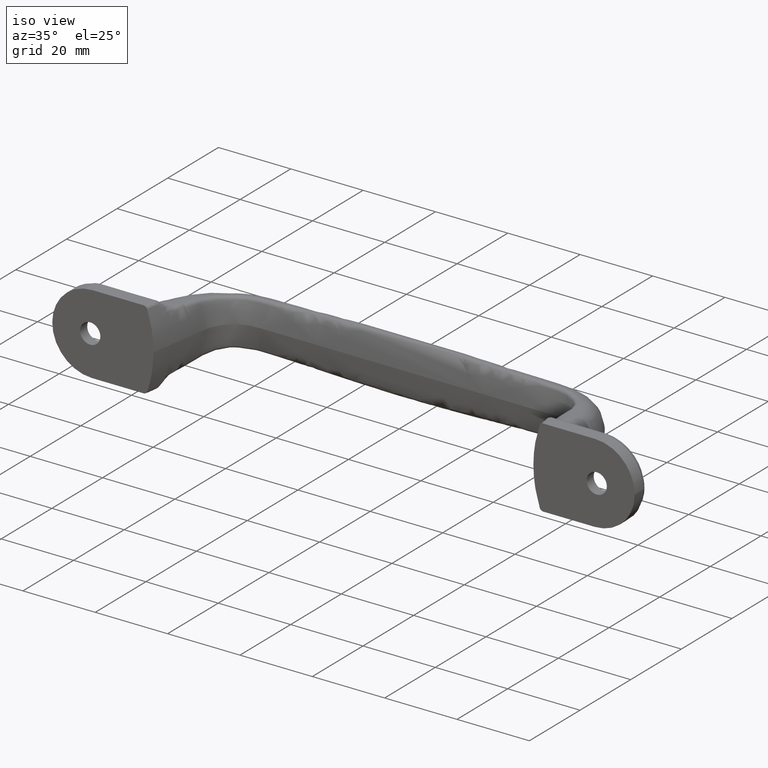
[diagram: clean part render]
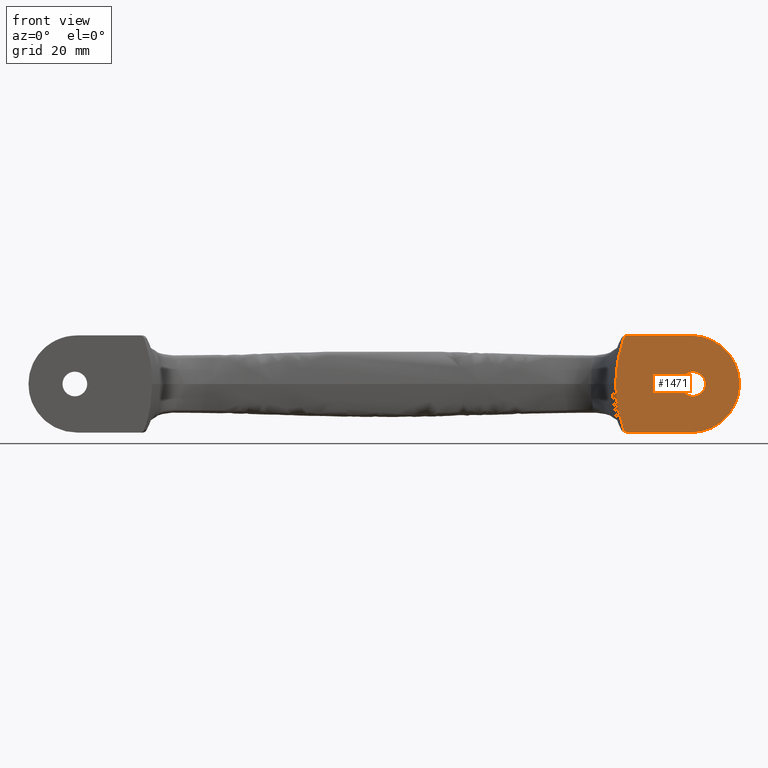
[diagram: tour spotlight — one face highlighted and labeled with its STEP entity id]
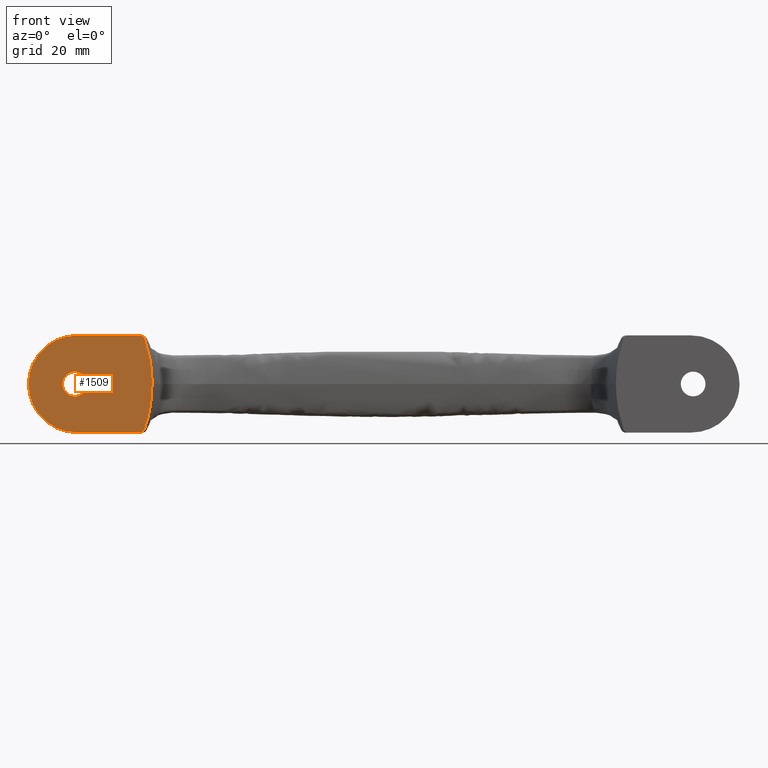
[diagram: tour spotlight — one face highlighted and labeled with its STEP entity id]
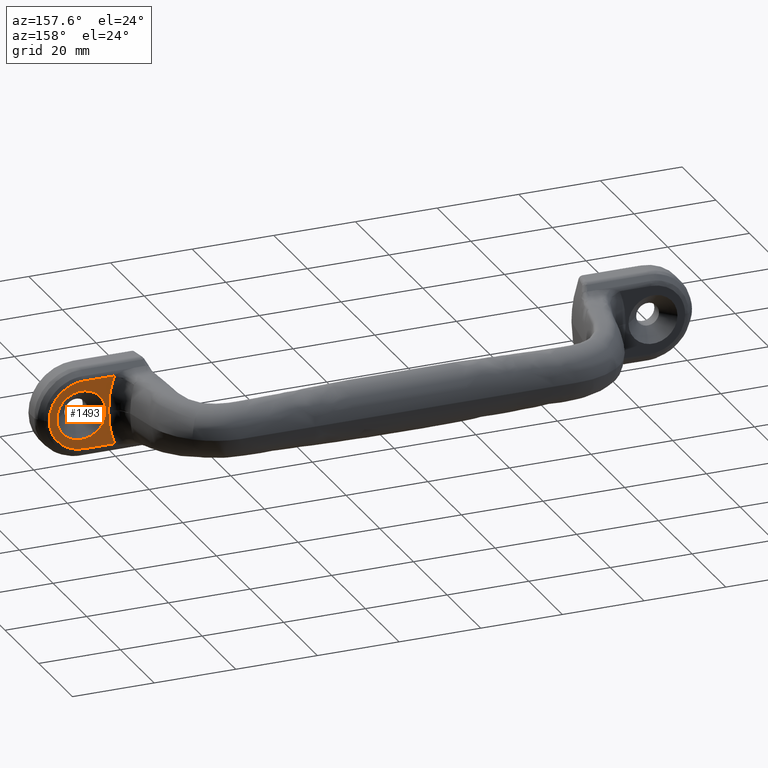
[diagram: tour spotlight — one face highlighted and labeled with its STEP entity id]
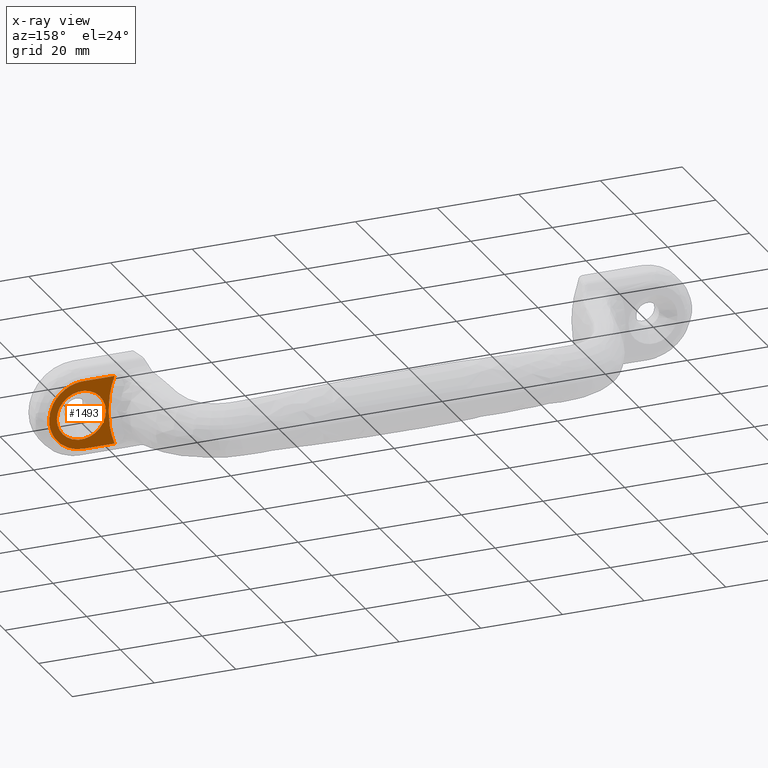
[diagram: x-ray of the same camera — body ghosted, this tour face saturated]
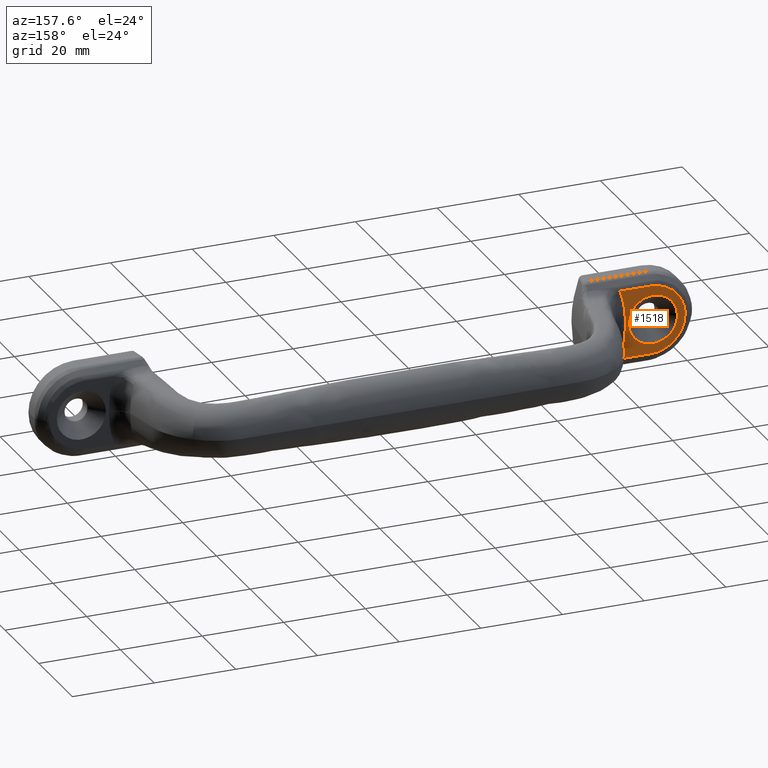
[diagram: tour spotlight — one face highlighted and labeled with its STEP entity id]
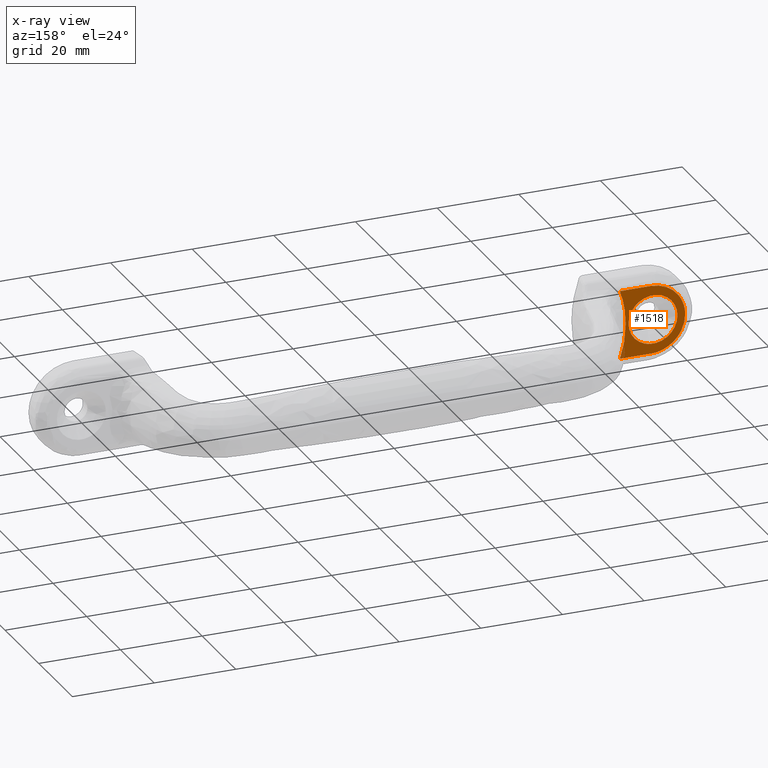
[diagram: x-ray of the same camera — body ghosted, this tour face saturated]
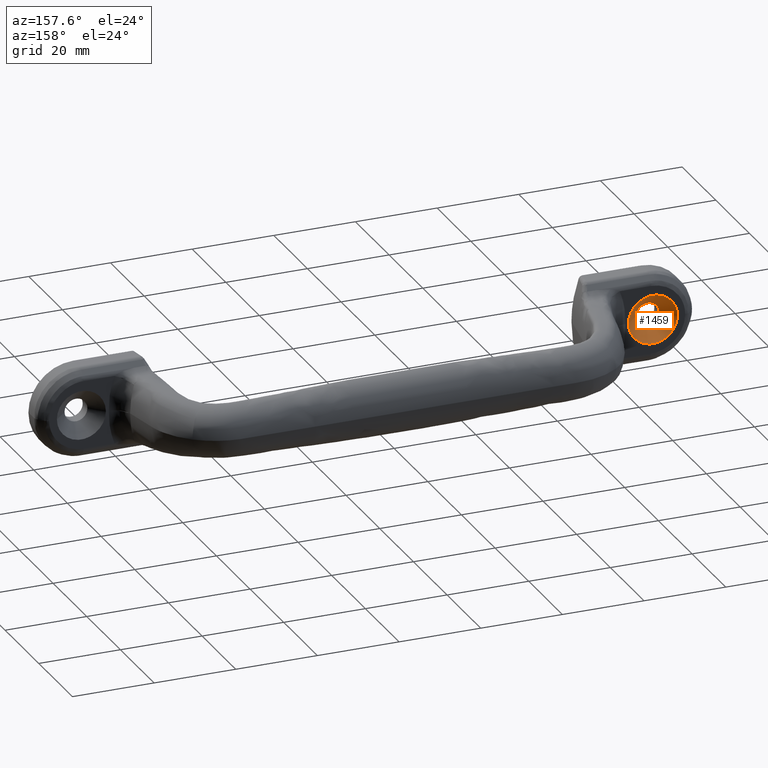
[diagram: tour spotlight — one face highlighted and labeled with its STEP entity id]
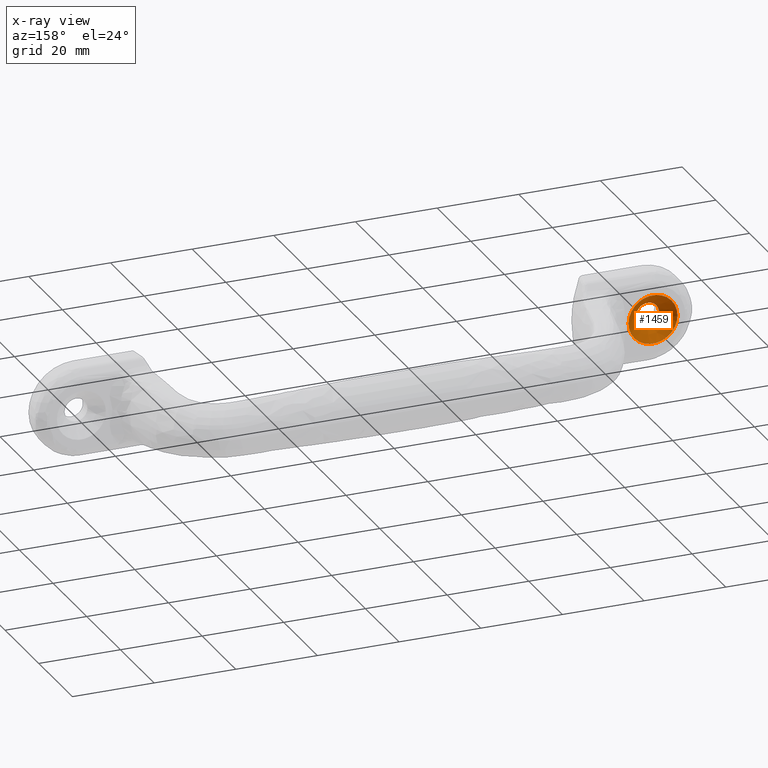
[diagram: x-ray of the same camera — body ghosted, this tour face saturated]
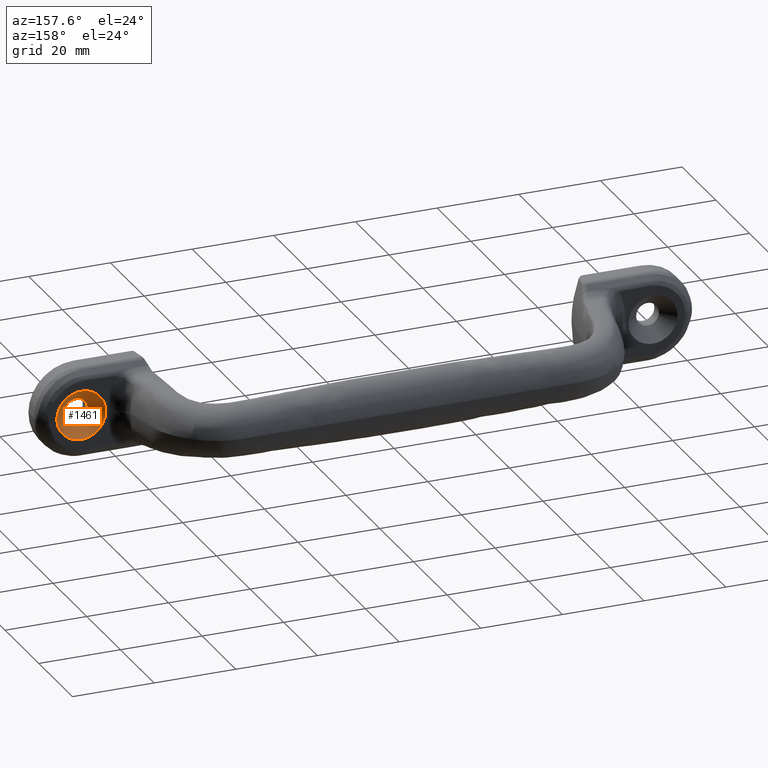
[diagram: tour spotlight — one face highlighted and labeled with its STEP entity id]
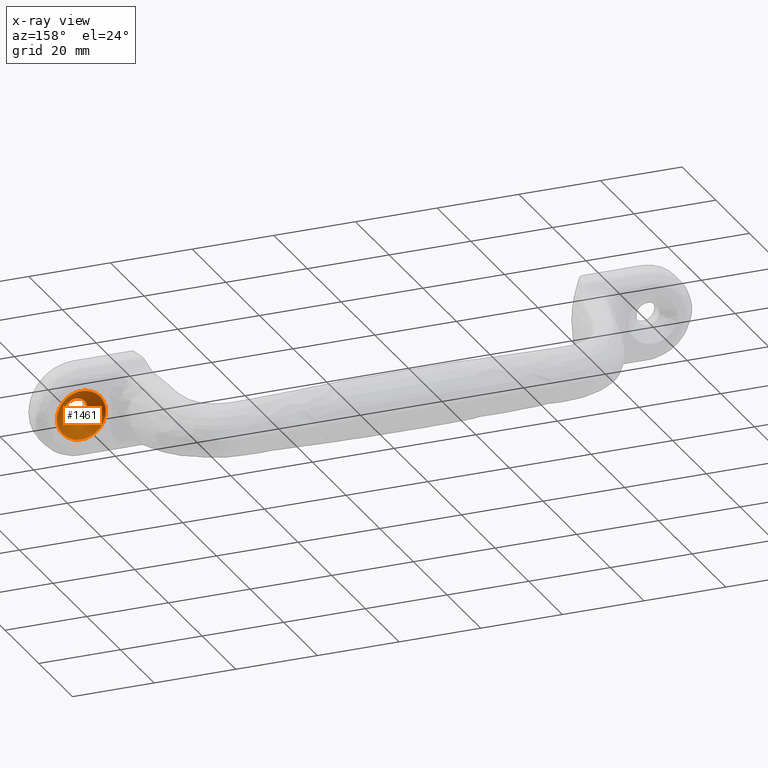
[diagram: x-ray of the same camera — body ghosted, this tour face saturated]
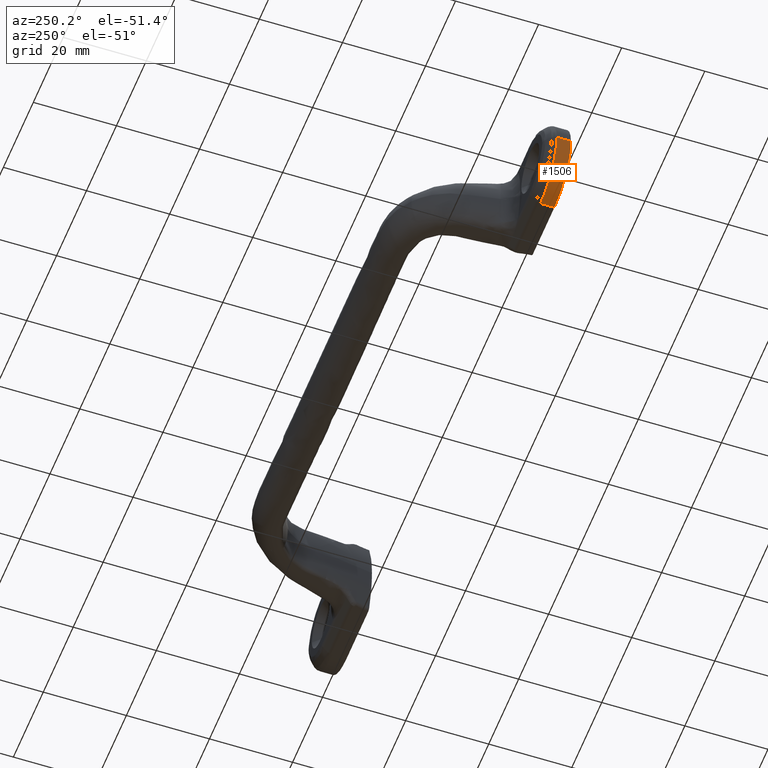
[diagram: tour spotlight — one face highlighted and labeled with its STEP entity id]
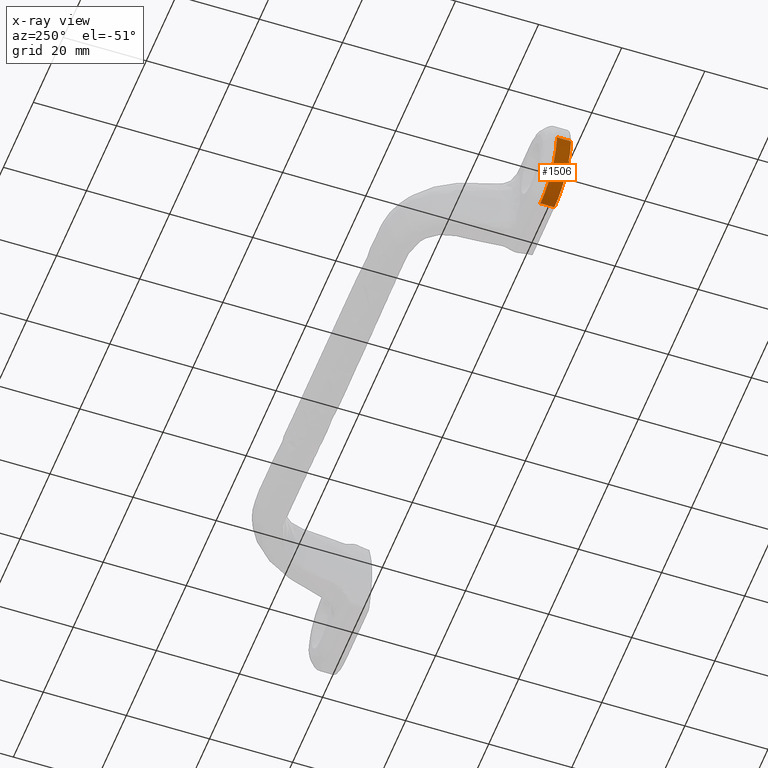
[diagram: x-ray of the same camera — body ghosted, this tour face saturated]
A machine part: a face-by-face anatomy tour. The part has 86 B-rep faces; the first image is the clean iso view, then the 7 largest visible faces are spotlighted one at a time (largest first), each with its STEP entity span.

Face 1 — front view, entity #1471. In plain terms, the highlighted planar face has unit normal (0, 1, 0).
Definition (entity closure, byte-faithful):
#18=PLANE('',#1564);
#34=LINE('',#3709,#76);
#35=LINE('',#3732,#77);
#76=VECTOR('',#1631,14.287888227897);
#77=VECTOR('',#1632,14.2878881004442);
#115=ELLIPSE('',#1558,27.1111705615568,23.3923334610261);
#118=ELLIPSE('',#1562,27.1111705615592,23.3923334610302);
#145=B_SPLINE_CURVE_WITH_KNOTS('',3,(#2118,#2119,#2120,#2121,#2122,#2123,
#2124,#2125,#2126,#2127),.UNSPECIFIED.,.F.,.F.,(4,2,2,2,4),(-0.0812934233477442,
-0.0629541878007357,-0.0446568824231993,-0.0261734306184848,-0.0010121046762763),
 .UNSPECIFIED.);
#170=B_SPLINE_CURVE_WITH_KNOTS('',3,(#3698,#3699,#3700,#3701,#3702,#3703,
#3704,#3705,#3706,#3707),.UNSPECIFIED.,.F.,.F.,(4,2,2,2,4),(-0.0812934233446902,
-0.0629541877880791,-0.0446568824009988,-0.026173430605273,-0.00101210467627566),
 .UNSPECIFIED.);
#171=B_SPLINE_CURVE_WITH_KNOTS('',3,(#3711,#3712,#3713,#3714,#3715,#3716,
#3717,#3718,#3719,#3720),.UNSPECIFIED.,.F.,.F.,(4,1,1,1,1,1,1,4),(0.,0.203389830508474,
0.338983050847459,0.47457627118644,0.610169491525423,0.745762711864406,
0.881355932203389,1.),.UNSPECIFIED.);
#172=B_SPLINE_CURVE_WITH_KNOTS('',3,(#3722,#3723,#3724,#3725,#3726,#3727,
#3728,#3729,#3730,#3731),.UNSPECIFIED.,.F.,.F.,(4,1,1,1,1,1,1,4),(0.,0.00204222062117855,
0.0043761867264714,0.00671015283176424,0.00904411893705709,0.0113780850423499,
0.0137120511476428,0.017213000305582),.UNSPECIFIED.);
#381=FACE_BOUND('',#488,.T.);
#397=FACE_OUTER_BOUND('',#487,.T.);
#487=EDGE_LOOP('',(#1047,#1048,#1049,#1050,#1051,#1052,#1053,#1054));
#488=EDGE_LOOP('',(#1055));
#570=CIRCLE('',#1556,2.8);
#578=VERTEX_POINT('',#1732);
#591=VERTEX_POINT('',#2049);
#592=VERTEX_POINT('',#2051);
#594=VERTEX_POINT('',#2104);
#616=VERTEX_POINT('',#3633);
#621=VERTEX_POINT('',#3697);
#622=VERTEX_POINT('',#3708);
#623=VERTEX_POINT('',#3710);
#624=VERTEX_POINT('',#3721);
#739=EDGE_CURVE('',#578,#578,#570,.T.);
#753=EDGE_CURVE('',#592,#591,#115,.T.);
#760=EDGE_CURVE('',#594,#592,#145,.T.);
#783=EDGE_CURVE('',#616,#591,#118,.T.);
#789=EDGE_CURVE('',#621,#616,#170,.T.);
#790=EDGE_CURVE('',#622,#621,#34,.T.);
#791=EDGE_CURVE('',#623,#622,#171,.T.);
#792=EDGE_CURVE('',#624,#623,#172,.T.);
#793=EDGE_CURVE('',#594,#624,#35,.T.);
#1047=ORIENTED_EDGE('',*,*,#753,.T.);
#1048=ORIENTED_EDGE('',*,*,#783,.F.);
#1049=ORIENTED_EDGE('',*,*,#789,.F.);
#1050=ORIENTED_EDGE('',*,*,#790,.F.);
#1051=ORIENTED_EDGE('',*,*,#791,.F.);
#1052=ORIENTED_EDGE('',*,*,#792,.F.);
#1053=ORIENTED_EDGE('',*,*,#793,.F.);
#1054=ORIENTED_EDGE('',*,*,#760,.T.);
#1055=ORIENTED_EDGE('',*,*,#739,.T.);
#1471=ADVANCED_FACE('',(#397,#381),#18,.F.);
#1556=AXIS2_PLACEMENT_3D('',#1733,#1609,#1610);
#1558=AXIS2_PLACEMENT_3D('',#2052,#1614,#1615);
#1562=AXIS2_PLACEMENT_3D('',#3635,#1625,#1626);
#1564=AXIS2_PLACEMENT_3D('',#3696,#1629,#1630);
#1609=DIRECTION('center_axis',(0.,1.,0.));
#1610=DIRECTION('ref_axis',(0.999999999832364,0.,1.83104090069907E-5));
#1614=DIRECTION('center_axis',(0.,-1.,0.));
#1615=DIRECTION('ref_axis',(-0.178824742704859,0.,-0.983880943710437));
#1625=DIRECTION('center_axis',(0.,1.,0.));
#1626=DIRECTION('ref_axis',(-0.178824742704866,0.,0.983880943710436));
#1629=DIRECTION('center_axis',(0.,1.,0.));
#1630=DIRECTION('ref_axis',(0.,0.,1.));
#1631=DIRECTION('',(-1.,0.,0.));
#1632=DIRECTION('',(1.,0.,0.));
#1732=CARTESIAN_POINT('',(567.200029366927,-81.9999999999999,-4.21108436510071E-5));
#1733=CARTESIAN_POINT('Origin',(570.000029366458,-81.9999999999999,9.15830156822395E-6));
#2049=CARTESIAN_POINT('',(552.500030518313,-82.,0.));
#2051=CARTESIAN_POINT('',(554.255703855453,-81.9999999209794,10.3267670898678));
#2052=CARTESIAN_POINT('Origin',(576.020388610143,-82.,1.40488977276047));
#2104=CARTESIAN_POINT('',(555.212142467269,-82.0000000001264,11.000000001));
#2118=CARTESIAN_POINT('Ctrl Pts',(555.212142467,-82.,11.));
#2119=CARTESIAN_POINT('Ctrl Pts',(555.107890576938,-82.,11.0000010540439));
#2120=CARTESIAN_POINT('Ctrl Pts',(555.004322612486,-82.,10.9823441534589));
#2121=CARTESIAN_POINT('Ctrl Pts',(554.806668713022,-82.,10.9168098000958));
#2122=CARTESIAN_POINT('Ctrl Pts',(554.712845834749,-81.9999999999989,10.8690958362866));
#2123=CARTESIAN_POINT('Ctrl Pts',(554.541983344846,-81.9999999999989,10.7486376465995));
#2124=CARTESIAN_POINT('Ctrl Pts',(554.464836171284,-82.,10.6754406638777));
#2125=CARTESIAN_POINT('Ctrl Pts',(554.313414934558,-82.,10.4790149778779));
#2126=CARTESIAN_POINT('Ctrl Pts',(554.283260830783,-82.,10.4055275392653));
#2127=CARTESIAN_POINT('Ctrl Pts',(554.255703863205,-82.,10.3267670871555));
#3633=CARTESIAN_POINT('',(554.255703855453,-81.9999999209794,-10.3267670898678));
#3635=CARTESIAN_POINT('Origin',(576.020388610147,-82.,-1.40488977275979));
#3696=CARTESIAN_POINT('Origin',(552.332030518,-82.,-11.22000078846));
#3697=CARTESIAN_POINT('',(555.212142467081,-82.0000000000985,-11.000000001));
#3698=CARTESIAN_POINT('Ctrl Pts',(555.212142467,-82.,-11.));
#3699=CARTESIAN_POINT('Ctrl Pts',(555.107890576885,-82.,-11.0000010540439));
#3700=CARTESIAN_POINT('Ctrl Pts',(555.004322612382,-82.,-10.982344153441));
#3701=CARTESIAN_POINT('Ctrl Pts',(554.806668712827,-82.,-10.9168098000145));
#3702=CARTESIAN_POINT('Ctrl Pts',(554.712845834516,-81.9999999999989,-10.8690958361599));
#3703=CARTESIAN_POINT('Ctrl Pts',(554.541983344649,-81.9999999999989,-10.7486376464227));
#3704=CARTESIAN_POINT('Ctrl Pts',(554.464836171143,-82.,-10.6754406637214));
#3705=CARTESIAN_POINT('Ctrl Pts',(554.313414934527,-82.,-10.4790149778014));
#3706=CARTESIAN_POINT('Ctrl Pts',(554.283260830769,-82.,-10.405527539224));
#3707=CARTESIAN_POINT('Ctrl Pts',(554.255703863205,-82.,-10.3267670871556));
#3708=CARTESIAN_POINT('',(569.500030694978,-82.,-11.0000000010003));
#3709=CARTESIAN_POINT('',(566.500030518,-82.,-11.0000000029999));
#3710=CARTESIAN_POINT('',(580.500030518,-82.,0.));
#3711=CARTESIAN_POINT('Ctrl Pts',(580.500030518,-82.,0.));
#3712=CARTESIAN_POINT('Ctrl Pts',(580.500024993,-82.,-1.171406708));
#3713=CARTESIAN_POINT('Ctrl Pts',(580.184939564,-82.,-3.123412312));
#3714=CARTESIAN_POINT('Ctrl Pts',(579.048928471,-82.,-5.626635658));
#3715=CARTESIAN_POINT('Ctrl Pts',(577.643807234,-82.,-7.517967759));
#3716=CARTESIAN_POINT('Ctrl Pts',(575.87061289,-82.,-9.069539236));
#3717=CARTESIAN_POINT('Ctrl Pts',(573.809517347,-82.,-10.211228949));
#3718=CARTESIAN_POINT('Ctrl Pts',(571.647643613,-82.,-10.863056925));
#3719=CARTESIAN_POINT('Ctrl Pts',(570.183351447,-82.,-10.999996756));
#3720=CARTESIAN_POINT('Ctrl Pts',(569.500030867,-82.,-11.));
#3721=CARTESIAN_POINT('',(569.500030567714,-82.,11.0000000012503));
#3722=CARTESIAN_POINT('Ctrl Pts',(569.500030573947,-82.,11.0000000007508));
#3723=CARTESIAN_POINT('Ctrl Pts',(570.183351447,-82.0000000000162,10.999996756));
#3724=CARTESIAN_POINT('Ctrl Pts',(571.647643613,-82.0000000000162,10.863056925));
#3725=CARTESIAN_POINT('Ctrl Pts',(573.809517347,-82.0000000000162,10.211228949));
#3726=CARTESIAN_POINT('Ctrl Pts',(575.87061289,-82.0000000000162,9.06953923600001));
#3727=CARTESIAN_POINT('Ctrl Pts',(577.643807234,-82.0000000000162,7.517967759));
#3728=CARTESIAN_POINT('Ctrl Pts',(579.048928471,-82.0000000000162,5.626635658));
#3729=CARTESIAN_POINT('Ctrl Pts',(580.184939564,-82.0000000000162,3.123412312));
#3730=CARTESIAN_POINT('Ctrl Pts',(580.500024993,-82.0000000000162,1.171406708));
#3731=CARTESIAN_POINT('Ctrl Pts',(580.500030518,-82.,0.));
#3732=CARTESIAN_POINT('',(566.500030518,-82.,11.0000000029999));

Face 2 — front view, entity #1509. In plain terms, the highlighted planar face has unit normal (0, 1, 0).
Definition (entity closure, byte-faithful):
#24=PLANE('',#1573);
#56=LINE('',#10447,#98);
#57=LINE('',#10474,#99);
#98=VECTOR('',#1671,14.2878880610168);
#99=VECTOR('',#1676,14.2878880473222);
#123=ELLIPSE('',#1574,27.111170560895,23.3923334596745);
#124=ELLIPSE('',#1575,27.1111705609108,23.3923334597017);
#228=B_SPLINE_CURVE_WITH_KNOTS('',3,(#10255,#10256,#10257,#10258,#10259,
#10260,#10261,#10262,#10263,#10264),.UNSPECIFIED.,.F.,.F.,(4,1,1,1,1,1,
1,4),(0.,0.203389830508473,0.338983050847458,0.474576271186442,0.610169491525424,
0.745762711864407,0.88135593220339,1.),.UNSPECIFIED.);
#231=B_SPLINE_CURVE_WITH_KNOTS('',3,(#10434,#10435,#10436,#10437,#10438,
#10439,#10440,#10441,#10442,#10443),.UNSPECIFIED.,.F.,.F.,(4,1,1,1,1,1,
1,4),(0.,0.00350112178004647,0.00583520277906975,0.00816928377809302,0.0105033647771162,
0.0128374457761395,0.0151715267751627,0.0172138476493081),.UNSPECIFIED.);
#232=B_SPLINE_CURVE_WITH_KNOTS('',3,(#10449,#10450,#10451,#10452,#10453,
#10454,#10455,#10456,#10457,#10458),.UNSPECIFIED.,.F.,.F.,(4,2,2,2,4),(-0.0340472447948447,
-0.0245437456780972,-0.0175625539865972,-0.0106530008707999,-2.21202084427219E-11),
 .UNSPECIFIED.);
#233=B_SPLINE_CURVE_WITH_KNOTS('',3,(#10464,#10465,#10466,#10467,#10468,
#10469,#10470,#10471,#10472,#10473),.UNSPECIFIED.,.F.,.F.,(4,2,2,2,4),(-0.0340472437496137,
-0.02454374493738,-0.017562553469365,-0.0106530005812846,-4.54686427397988E-11),
 .UNSPECIFIED.);
#383=FACE_BOUND('',#528,.T.);
#435=FACE_OUTER_BOUND('',#527,.T.);
#527=EDGE_LOOP('',(#1243,#1244,#1245,#1246,#1247,#1248,#1249,#1250));
#528=EDGE_LOOP('',(#1251));
#567=CIRCLE('',#1551,2.8);
#575=VERTEX_POINT('',#1724);
#665=VERTEX_POINT('',#10251);
#666=VERTEX_POINT('',#10253);
#670=VERTEX_POINT('',#10433);
#671=VERTEX_POINT('',#10446);
#672=VERTEX_POINT('',#10448);
#673=VERTEX_POINT('',#10459);
#674=VERTEX_POINT('',#10461);
#675=VERTEX_POINT('',#10463);
#736=EDGE_CURVE('',#575,#575,#567,.T.);
#869=EDGE_CURVE('',#666,#665,#228,.T.);
#874=EDGE_CURVE('',#670,#665,#231,.T.);
#876=EDGE_CURVE('',#671,#666,#56,.T.);
#877=EDGE_CURVE('',#672,#671,#232,.T.);
#878=EDGE_CURVE('',#673,#672,#123,.T.);
#879=EDGE_CURVE('',#674,#673,#124,.T.);
#880=EDGE_CURVE('',#674,#675,#233,.T.);
#881=EDGE_CURVE('',#670,#675,#57,.T.);
#1243=ORIENTED_EDGE('',*,*,#869,.F.);
#1244=ORIENTED_EDGE('',*,*,#876,.F.);
#1245=ORIENTED_EDGE('',*,*,#877,.F.);
#1246=ORIENTED_EDGE('',*,*,#878,.F.);
#1247=ORIENTED_EDGE('',*,*,#879,.F.);
#1248=ORIENTED_EDGE('',*,*,#880,.T.);
#1249=ORIENTED_EDGE('',*,*,#881,.F.);
#1250=ORIENTED_EDGE('',*,*,#874,.T.);
#1251=ORIENTED_EDGE('',*,*,#736,.T.);
#1509=ADVANCED_FACE('',(#435,#383),#24,.F.);
#1551=AXIS2_PLACEMENT_3D('',#1725,#1599,#1600);
#1573=AXIS2_PLACEMENT_3D('',#10445,#1669,#1670);
#1574=AXIS2_PLACEMENT_3D('',#10460,#1672,#1673);
#1575=AXIS2_PLACEMENT_3D('',#10462,#1674,#1675);
#1599=DIRECTION('center_axis',(0.,1.,0.));
#1600=DIRECTION('ref_axis',(0.999999999832364,0.,1.83104090069907E-5));
#1669=DIRECTION('center_axis',(0.,1.,0.));
#1670=DIRECTION('ref_axis',(0.,0.,-1.));
#1671=DIRECTION('',(-1.,0.,0.));
#1672=DIRECTION('center_axis',(5.46860894980168E-11,1.,-1.57239094649588E-11));
#1673=DIRECTION('ref_axis',(0.178824742645477,5.69122900260041E-12,0.98388094372123));
#1674=DIRECTION('center_axis',(5.470569401369E-11,1.,1.57289617816913E-11));
#1675=DIRECTION('ref_axis',(-0.178824742645886,-5.69269410826172E-12,0.983880943721156));
#1676=DIRECTION('',(1.,0.,0.));
#1724=CARTESIAN_POINT('',(427.200029390396,-81.9999999999999,-0.00260556810462996));
#1725=CARTESIAN_POINT('Origin',(430.000029389926,-81.9999999999999,-0.00255429895941073));
#10251=CARTESIAN_POINT('',(419.499969482,-82.,0.));
#10253=CARTESIAN_POINT('',(430.499969468297,-82.,-11.000000001001));
#10255=CARTESIAN_POINT('Ctrl Pts',(430.499969133,-82.,-11.));
#10256=CARTESIAN_POINT('Ctrl Pts',(429.328562425,-82.,-10.999994438));
#10257=CARTESIAN_POINT('Ctrl Pts',(427.37655683,-82.,-10.684908947));
#10258=CARTESIAN_POINT('Ctrl Pts',(424.873333521,-82.,-9.548897775));
#10259=CARTESIAN_POINT('Ctrl Pts',(422.982001464,-82.,-8.143776477));
#10260=CARTESIAN_POINT('Ctrl Pts',(421.430430044,-82.,-6.370582084));
#10261=CARTESIAN_POINT('Ctrl Pts',(420.288740397,-82.,-4.309486504));
#10262=CARTESIAN_POINT('Ctrl Pts',(419.636912489,-82.,-2.14761275));
#10263=CARTESIAN_POINT('Ctrl Pts',(419.499972705,-82.,-0.683320579));
#10264=CARTESIAN_POINT('Ctrl Pts',(419.499969482,-82.,0.));
#10433=CARTESIAN_POINT('',(430.499969483306,-82.,11.000000001501));
#10434=CARTESIAN_POINT('Ctrl Pts',(430.499969487099,-82.,11.000000001501));
#10435=CARTESIAN_POINT('Ctrl Pts',(429.328562425,-81.9999999999839,10.999994438));
#10436=CARTESIAN_POINT('Ctrl Pts',(427.37655683,-81.9999999999839,10.684908947));
#10437=CARTESIAN_POINT('Ctrl Pts',(424.873333521,-81.9999999999839,9.548897775));
#10438=CARTESIAN_POINT('Ctrl Pts',(422.982001464,-81.9999999999839,8.143776477));
#10439=CARTESIAN_POINT('Ctrl Pts',(421.430430044,-81.9999999999839,6.370582084));
#10440=CARTESIAN_POINT('Ctrl Pts',(420.288740397,-81.9999999999839,4.309486504));
#10441=CARTESIAN_POINT('Ctrl Pts',(419.636912489,-81.9999999999839,2.14761275));
#10442=CARTESIAN_POINT('Ctrl Pts',(419.499972705,-81.9999999999839,0.683320579));
#10443=CARTESIAN_POINT('Ctrl Pts',(419.499969482,-82.,0.));
#10445=CARTESIAN_POINT('Origin',(447.667969482,-82.,11.22000078846));
#10446=CARTESIAN_POINT('',(444.787857529314,-82.0000000000441,-11.000000001));
#10447=CARTESIAN_POINT('',(433.499969482,-82.,-11.0000000029999));
#10448=CARTESIAN_POINT('',(445.744296145144,-81.9999999210471,-10.3267670895625));
#10449=CARTESIAN_POINT('Ctrl Pts',(445.744296136956,-82.,-10.3267670866978));
#10450=CARTESIAN_POINT('Ctrl Pts',(445.716736389172,-82.,-10.4055354849));
#10451=CARTESIAN_POINT('Ctrl Pts',(445.686579136825,-82.,-10.4790296723668));
#10452=CARTESIAN_POINT('Ctrl Pts',(445.535136776705,-82.,-10.6754706098958));
#10453=CARTESIAN_POINT('Ctrl Pts',(445.457978861328,-81.999999999999,-10.7486715098067));
#10454=CARTESIAN_POINT('Ctrl Pts',(445.287109567021,-81.999999999999,-10.8691201294825));
#10455=CARTESIAN_POINT('Ctrl Pts',(445.193293976325,-82.,-10.9168253929228));
#10456=CARTESIAN_POINT('Ctrl Pts',(444.942407038076,-82.,-11.00000156265));
#10457=CARTESIAN_POINT('Ctrl Pts',(444.823367532164,-82.,-11.0000003590259));
#10458=CARTESIAN_POINT('Ctrl Pts',(444.787857529314,-82.,-11.));
#10459=CARTESIAN_POINT('',(447.499969482438,-82.,0.));
#10460=CARTESIAN_POINT('Origin',(423.979611391278,-81.9999999986695,-1.40488977250739));
#10461=CARTESIAN_POINT('',(445.744296145144,-81.9999999210471,10.3267670895625));
#10462=CARTESIAN_POINT('Origin',(423.97961139125,-81.999999998669,1.40488977250574));
#10463=CARTESIAN_POINT('',(444.787857530628,-82.0000000000777,11.000000001));
#10464=CARTESIAN_POINT('Ctrl Pts',(445.744296136956,-82.,10.3267670866977));
#10465=CARTESIAN_POINT('Ctrl Pts',(445.716736389184,-82.,10.4055354848665));
#10466=CARTESIAN_POINT('Ctrl Pts',(445.68657913685,-82.,10.4790296723049));
#10467=CARTESIAN_POINT('Ctrl Pts',(445.53513677682,-82.,10.6754706097694));
#10468=CARTESIAN_POINT('Ctrl Pts',(445.457978861488,-81.999999999999,10.7486715096635));
#10469=CARTESIAN_POINT('Ctrl Pts',(445.287109567359,-81.999999999999,10.8691201292748));
#10470=CARTESIAN_POINT('Ctrl Pts',(445.193293976812,-82.,10.9168253926892));
#10471=CARTESIAN_POINT('Ctrl Pts',(444.94240703841,-82.,11.00000156265));
#10472=CARTESIAN_POINT('Ctrl Pts',(444.82336753246,-82.,11.0000003590259));
#10473=CARTESIAN_POINT('Ctrl Pts',(444.787857530628,-82.,11.));
#10474=CARTESIAN_POINT('',(433.499969482,-82.,11.0000000029999));

Face 3 — auxiliary view, entity #1493. An x-ray twin of the same camera follows (body ghosted, this face saturated) — the face is partly hidden behind the body. In plain terms, the highlighted planar face has unit normal (0, -1, 0).
Definition (entity closure, byte-faithful):
#21=PLANE('',#1570);
#43=LINE('',#9231,#85);
#45=LINE('',#9310,#87);
#85=VECTOR('',#1650,7.61991772590967);
#87=VECTOR('',#1654,7.6199137556889);
#190=B_SPLINE_CURVE_WITH_KNOTS('',3,(#6820,#6821,#6822,#6823,#6824,#6825,
#6826,#6827,#6828,#6829,#6830,#6831,#6832,#6833,#6834,#6835,#6836,#6837,
#6838,#6839,#6840,#6841,#6842,#6843,#6844,#6845,#6846,#6847,#6848,#6849,
#6850,#6851,#6852,#6853,#6854,#6855,#6856,#6857,#6858,#6859,#6860,#6861,
#6862,#6863,#6864,#6865,#6866,#6867,#6868,#6869,#6870,#6871,#6872,#6873,
#6874),.UNSPECIFIED.,.F.,.F.,(4,3,3,3,3,3,3,3,3,3,3,3,3,3,3,3,3,3,4),(0.,
0.0198096846582485,0.0378449672023486,0.0915980034643584,0.249999999999977,
0.374999999999966,0.499999999999954,0.687499999999937,0.749999999999932,
0.808158795047716,0.843589038740442,0.84960937499992,0.851562499999918,
0.867924254390353,0.894084333810339,0.926661741304343,0.957163786205705,
0.995166451984376,1.),.UNSPECIFIED.);
#209=B_SPLINE_CURVE_WITH_KNOTS('',3,(#8182,#8183,#8184,#8185,#8186,#8187,
#8188,#8189,#8190,#8191,#8192,#8193,#8194,#8195,#8196,#8197,#8198,#8199,
#8200,#8201,#8202,#8203,#8204,#8205,#8206,#8207,#8208,#8209,#8210,#8211,
#8212,#8213,#8214,#8215),.UNSPECIFIED.,.F.,.F.,(4,3,3,3,3,3,3,3,3,3,3,4),
(0.,0.0195780291099001,0.0374844247879728,0.0912135596777148,0.807720399247226,
0.84346860466192,0.878963742720681,0.915158716151481,0.949457382960709,
0.973543486318137,0.997213194750402,1.),.UNSPECIFIED.);
#213=B_SPLINE_CURVE_WITH_KNOTS('',3,(#9235,#9236,#9237,#9238,#9239,#9240,
#9241,#9242,#9243,#9244,#9245,#9246,#9247,#9248,#9249,#9250,#9251,#9252,
#9253,#9254,#9255,#9256,#9257,#9258,#9259,#9260,#9261,#9262,#9263,#9264,
#9265,#9266,#9267,#9268,#9269,#9270,#9271),.UNSPECIFIED.,.F.,.F.,(4,3,3,
3,3,3,3,3,3,3,3,3,4),(0.,0.0170351511404176,0.0383247838630236,0.0489703313732401,
0.0809072852500012,0.378732984780306,0.697904784800098,0.889236137153362,
0.942681179662881,0.96410632647923,0.984734776583619,0.994921990778812,
0.999999962991618),.UNSPECIFIED.);
#214=B_SPLINE_CURVE_WITH_KNOTS('',3,(#9273,#9274,#9275,#9276,#9277,#9278,
#9279,#9280,#9281,#9282,#9283,#9284,#9285,#9286,#9287,#9288,#9289,#9290,
#9291,#9292,#9293,#9294,#9295,#9296,#9297,#9298,#9299,#9300,#9301,#9302,
#9303,#9304,#9305,#9306,#9307,#9308,#9309),.UNSPECIFIED.,.F.,.F.,(4,3,3,
3,3,3,3,3,3,3,3,3,4),(3.70044125622218E-8,0.00507800921723816,0.0152652234124721,
0.0358936735169432,0.0573188203333768,0.110763862843108,0.302095215197132,
0.62126701521819,0.919092714749678,0.951029668626566,0.961675216136824,
0.982964848859515,1.),.UNSPECIFIED.);
#382=FACE_BOUND('',#511,.T.);
#419=FACE_OUTER_BOUND('',#510,.T.);
#510=EDGE_LOOP('',(#1174,#1175,#1176,#1177,#1178,#1179));
#511=EDGE_LOOP('',(#1180));
#568=CIRCLE('',#1553,6.);
#576=VERTEX_POINT('',#1727);
#635=VERTEX_POINT('',#6573);
#636=VERTEX_POINT('',#6812);
#651=VERTEX_POINT('',#7985);
#654=VERTEX_POINT('',#9226);
#655=VERTEX_POINT('',#9234);
#656=VERTEX_POINT('',#9272);
#737=EDGE_CURVE('',#576,#576,#568,.T.);
#813=EDGE_CURVE('',#636,#635,#190,.T.);
#840=EDGE_CURVE('',#636,#651,#209,.T.);
#844=EDGE_CURVE('',#635,#654,#43,.T.);
#846=EDGE_CURVE('',#655,#654,#213,.T.);
#847=EDGE_CURVE('',#656,#655,#214,.T.);
#848=EDGE_CURVE('',#651,#656,#45,.T.);
#1174=ORIENTED_EDGE('',*,*,#846,.F.);
#1175=ORIENTED_EDGE('',*,*,#847,.F.);
#1176=ORIENTED_EDGE('',*,*,#848,.F.);
#1177=ORIENTED_EDGE('',*,*,#840,.F.);
#1178=ORIENTED_EDGE('',*,*,#813,.T.);
#1179=ORIENTED_EDGE('',*,*,#844,.T.);
#1180=ORIENTED_EDGE('',*,*,#737,.T.);
#1493=ADVANCED_FACE('',(#419,#382),#21,.F.);
#1553=AXIS2_PLACEMENT_3D('',#1728,#1603,#1604);
#1570=AXIS2_PLACEMENT_3D('',#9233,#1652,#1653);
#1603=DIRECTION('center_axis',(0.,-1.,0.));
#1604=DIRECTION('ref_axis',(0.999999999832364,0.,1.83104090069907E-5));
#1650=DIRECTION('',(1.,0.,0.));
#1652=DIRECTION('center_axis',(0.,-1.,0.));
#1653=DIRECTION('ref_axis',(0.,0.,-1.));
#1654=DIRECTION('',(1.,0.,0.));
#1727=CARTESIAN_POINT('',(576.000029365452,-76.,0.000119020755610168));
#1728=CARTESIAN_POINT('Origin',(570.000029366458,-76.,9.15830156822395E-6));
#6573=CARTESIAN_POINT('',(561.873194979791,-76.000000129449,8.37858605564014));
#6812=CARTESIAN_POINT('',(563.315476871504,-76.,0.));
#6820=CARTESIAN_POINT('Ctrl Pts',(563.315476871504,-76.,1.0426956538705E-11));
#6821=CARTESIAN_POINT('Ctrl Pts',(563.315856570129,-76.,0.0556469854029302));
#6822=CARTESIAN_POINT('Ctrl Pts',(563.316054639652,-76.,0.10951822822847));
#6823=CARTESIAN_POINT('Ctrl Pts',(563.316067433185,-76.,0.164050312624566));
#6824=CARTESIAN_POINT('Ctrl Pts',(563.316079080769,-76.,0.213697824271996));
#6825=CARTESIAN_POINT('Ctrl Pts',(563.315937161801,-76.,0.263899439024592));
#6826=CARTESIAN_POINT('Ctrl Pts',(563.31563950149,-76.,0.314146730679524));
#6827=CARTESIAN_POINT('Ctrl Pts',(563.314752343474,-76.,0.46390565371225));
#6828=CARTESIAN_POINT('Ctrl Pts',(563.312479496329,-76.,0.614059071542189));
#6829=CARTESIAN_POINT('Ctrl Pts',(563.308833835176,-76.,0.764585665027792));
#6830=CARTESIAN_POINT('Ctrl Pts',(563.298090627992,-76.,1.20816456954963));
#6831=CARTESIAN_POINT('Ctrl Pts',(563.275273693416,-76.,1.65498773970411));
#6832=CARTESIAN_POINT('Ctrl Pts',(563.24090506243,-76.,2.0949491710743));
#6833=CARTESIAN_POINT('Ctrl Pts',(563.213783694219,-76.,2.44213658110737));
#6834=CARTESIAN_POINT('Ctrl Pts',(563.179323460912,-76.,2.78834330087588));
#6835=CARTESIAN_POINT('Ctrl Pts',(563.137474083543,-76.,3.13356717393947));
#6836=CARTESIAN_POINT('Ctrl Pts',(563.095624706173,-76.,3.47879104700307));
#6837=CARTESIAN_POINT('Ctrl Pts',(563.046700651321,-75.9999999998858,3.82105343427776));
#6838=CARTESIAN_POINT('Ctrl Pts',(562.98967125045,-75.9999999999389,4.16627348910822));
#6839=CARTESIAN_POINT('Ctrl Pts',(562.904127149143,-76.0000000000184,4.68410357135391));
#6840=CARTESIAN_POINT('Ctrl Pts',(562.801891190876,-76.0000000000146,5.19779671278715));
#6841=CARTESIAN_POINT('Ctrl Pts',(562.682930173093,-75.9999999999616,5.70734779169672));
#6842=CARTESIAN_POINT('Ctrl Pts',(562.643276500499,-75.9999999999439,5.87719815133324));
#6843=CARTESIAN_POINT('Ctrl Pts',(562.601261250422,-75.9999999999222,6.04854760458042));
#6844=CARTESIAN_POINT('Ctrl Pts',(562.558391199234,-75.9999999999488,6.21551711095471));
#6845=CARTESIAN_POINT('Ctrl Pts',(562.518498870903,-75.9999999999736,6.37088903576197));
#6846=CARTESIAN_POINT('Ctrl Pts',(562.476802692882,-75.9999999999469,6.52676587121195));
#6847=CARTESIAN_POINT('Ctrl Pts',(562.432973975984,-75.9999999999333,6.68404252645371));
#6848=CARTESIAN_POINT('Ctrl Pts',(562.406273592678,-75.9999999999251,6.7798552099492));
#6849=CARTESIAN_POINT('Ctrl Pts',(562.378778182789,-75.9999999999276,6.87619234141637));
#6850=CARTESIAN_POINT('Ctrl Pts',(562.350661334866,-75.9999999999716,6.97258918049504));
#6851=CARTESIAN_POINT('Ctrl Pts',(562.345883696854,-75.9999999999791,6.98896901097651));
#6852=CARTESIAN_POINT('Ctrl Pts',(562.341088165667,-75.9999999999876,7.00535036546151));
#6853=CARTESIAN_POINT('Ctrl Pts',(562.336267105314,-75.999999999997,7.02175245077053));
#6854=CARTESIAN_POINT('Ctrl Pts',(562.3347030509,-76.,7.02707363574898));
#6855=CARTESIAN_POINT('Ctrl Pts',(562.331680290893,-76.,7.03734309672405));
#6856=CARTESIAN_POINT('Ctrl Pts',(562.329082450817,-76.,7.04614448211512));
#6857=CARTESIAN_POINT('Ctrl Pts',(562.30731977752,-76.,7.11987560842012));
#6858=CARTESIAN_POINT('Ctrl Pts',(562.286126426048,-76.,7.19026288282397));
#6859=CARTESIAN_POINT('Ctrl Pts',(562.265086445921,-76.,7.25867089450937));
#6860=CARTESIAN_POINT('Ctrl Pts',(562.231446560004,-76.,7.36804541364403));
#6861=CARTESIAN_POINT('Ctrl Pts',(562.199115426393,-76.,7.46974651815846));
#6862=CARTESIAN_POINT('Ctrl Pts',(562.17364536143,-76.,7.54984075100329));
#6863=CARTESIAN_POINT('Ctrl Pts',(562.141927235812,-76.,7.64958289701958));
#6864=CARTESIAN_POINT('Ctrl Pts',(562.116984681562,-76.,7.72671551707321));
#6865=CARTESIAN_POINT('Ctrl Pts',(562.086407487958,-76.,7.81719295019666));
#6866=CARTESIAN_POINT('Ctrl Pts',(562.057778232164,-76.,7.90190646609566));
#6867=CARTESIAN_POINT('Ctrl Pts',(562.02663090797,-76.,7.99126356067387));
#6868=CARTESIAN_POINT('Ctrl Pts',(561.998493580122,-76.,8.06891093898093));
#6869=CARTESIAN_POINT('Ctrl Pts',(561.963437128347,-76.,8.16565223537385));
#6870=CARTESIAN_POINT('Ctrl Pts',(561.931032797305,-76.,8.24925801891341));
#6871=CARTESIAN_POINT('Ctrl Pts',(561.887717574774,-76.,8.34647302288293));
#6872=CARTESIAN_POINT('Ctrl Pts',(561.882208324209,-76.,8.35883777098408));
#6873=CARTESIAN_POINT('Ctrl Pts',(561.876536944149,-76.,8.37138948456388));
#6874=CARTESIAN_POINT('Ctrl Pts',(561.87306423256,-76.,8.3785291299404));
#7985=CARTESIAN_POINT('',(561.873198527201,-76.0000001300149,-8.37858747638735));
#8182=CARTESIAN_POINT('Ctrl Pts',(563.315476871504,-76.,-1.0426956538738E-11));
#8183=CARTESIAN_POINT('Ctrl Pts',(563.315857573,-76.,-0.0557937599997593));
#8184=CARTESIAN_POINT('Ctrl Pts',(563.316054673008,-76.,-0.109655001740135));
#8185=CARTESIAN_POINT('Ctrl Pts',(563.316067434353,-76.,-0.164050312624296));
#8186=CARTESIAN_POINT('Ctrl Pts',(563.316079106094,-76.,-0.213801181532291));
#8187=CARTESIAN_POINT('Ctrl Pts',(563.315936574116,-76.,-0.263998812105654));
#8188=CARTESIAN_POINT('Ctrl Pts',(563.315639502405,-76.,-0.314146730684966));
#8189=CARTESIAN_POINT('Ctrl Pts',(563.314748122233,-76.,-0.46461834597978));
#8190=CARTESIAN_POINT('Ctrl Pts',(563.312465369283,-76.,-0.614642387608515));
#8191=CARTESIAN_POINT('Ctrl Pts',(563.308833835556,-76.,-0.764585665037132));
#8192=CARTESIAN_POINT('Ctrl Pts',(563.260405384981,-76.,-2.76415971448986));
#8193=CARTESIAN_POINT('Ctrl Pts',(562.972114436073,-76.,-4.74937093853792));
#8194=CARTESIAN_POINT('Ctrl Pts',(562.432977219389,-76.,-6.68404342890363));
#8195=CARTESIAN_POINT('Ctrl Pts',(562.40607840014,-76.,-6.7805687735009));
#8196=CARTESIAN_POINT('Ctrl Pts',(562.378555162835,-76.,-6.87696831476017));
#8197=CARTESIAN_POINT('Ctrl Pts',(562.350662550854,-76.,-6.97258953571461));
#8198=CARTESIAN_POINT('Ctrl Pts',(562.322967395207,-76.,-7.06753383850555));
#8199=CARTESIAN_POINT('Ctrl Pts',(562.2949080761,-76.,-7.16171080169836));
#8200=CARTESIAN_POINT('Ctrl Pts',(562.265086445921,-76.,-7.25867089450936));
#8201=CARTESIAN_POINT('Ctrl Pts',(562.234676841365,-76.,-7.35754268865006));
#8202=CARTESIAN_POINT('Ctrl Pts',(562.2024347479,-76.,-7.45930844075164));
#8203=CARTESIAN_POINT('Ctrl Pts',(562.17364536143,-76.,-7.54984075100327));
#8204=CARTESIAN_POINT('Ctrl Pts',(562.146364292249,-76.,-7.63562994354756));
#8205=CARTESIAN_POINT('Ctrl Pts',(562.122183622716,-76.,-7.7113319322801));
#8206=CARTESIAN_POINT('Ctrl Pts',(562.086407487958,-76.,-7.81719295019663));
#8207=CARTESIAN_POINT('Ctrl Pts',(562.061283838567,-76.,-7.89153343209473));
#8208=CARTESIAN_POINT('Ctrl Pts',(562.030441891094,-76.,-7.98074682468695));
#8209=CARTESIAN_POINT('Ctrl Pts',(561.998493580122,-76.,-8.06891093898089));
#8210=CARTESIAN_POINT('Ctrl Pts',(561.967097584083,-76.,-8.15555089267365));
#8211=CARTESIAN_POINT('Ctrl Pts',(561.934633146996,-76.,-8.24117753382964));
#8212=CARTESIAN_POINT('Ctrl Pts',(561.887717574774,-76.,-8.34647302288291));
#8213=CARTESIAN_POINT('Ctrl Pts',(561.882193866557,-76.,-8.35887021917674));
#8214=CARTESIAN_POINT('Ctrl Pts',(561.876464703406,-76.,-8.37153800640553));
#8215=CARTESIAN_POINT('Ctrl Pts',(561.873064232149,-76.,-8.37852913078403));
#9226=CARTESIAN_POINT('',(569.493087933748,-76.,8.37872510137719));
#9231=CARTESIAN_POINT('',(561.7261078475,-76.,8.378679656));
#9233=CARTESIAN_POINT('Origin',(561.776956566,-76.,8.479315795));
#9234=CARTESIAN_POINT('',(577.87872366273,-76.000000000151,-1.31178686614226E-8));
#9235=CARTESIAN_POINT('Ctrl Pts',(577.878723647086,-76.0000000001495,0.00501080026597815));
#9236=CARTESIAN_POINT('Ctrl Pts',(577.878721105181,-75.9999999999991,0.0796965042533704));
#9237=CARTESIAN_POINT('Ctrl Pts',(577.877585693772,-76.,0.1526480327333));
#9238=CARTESIAN_POINT('Ctrl Pts',(577.875556156922,-76.,0.226702156297958));
#9239=CARTESIAN_POINT('Ctrl Pts',(577.873019748892,-76.,0.319251091102856));
#9240=CARTESIAN_POINT('Ctrl Pts',(577.869086833009,-76.,0.413662904780462));
#9241=CARTESIAN_POINT('Ctrl Pts',(577.863540585903,-76.,0.507098858407897));
#9242=CARTESIAN_POINT('Ctrl Pts',(577.860767271875,-76.,0.553820044088431));
#9243=CARTESIAN_POINT('Ctrl Pts',(577.857590569634,-76.,0.600297231241351));
#9244=CARTESIAN_POINT('Ctrl Pts',(577.854021403431,-76.,0.646768104763579));
#9245=CARTESIAN_POINT('Ctrl Pts',(577.843313800439,-76.,0.786182084445498));
#9246=CARTESIAN_POINT('Ctrl Pts',(577.829073952933,-76.,0.925539240343205));
#9247=CARTESIAN_POINT('Ctrl Pts',(577.811278600445,-76.,1.06445417387795));
#9248=CARTESIAN_POINT('Ctrl Pts',(577.645329357952,-76.,2.35989510462044));
#9249=CARTESIAN_POINT('Ctrl Pts',(577.17018070972,-76.,3.61687880004071));
#9250=CARTESIAN_POINT('Ctrl Pts',(576.437169175078,-76.,4.69885621816587));
#9251=CARTESIAN_POINT('Ctrl Pts',(575.651620408414,-76.,5.85838234592582));
#9252=CARTESIAN_POINT('Ctrl Pts',(574.569920422886,-76.,6.81691668672729));
#9253=CARTESIAN_POINT('Ctrl Pts',(573.324359327007,-76.,7.45497897739889));
#9254=CARTESIAN_POINT('Ctrl Pts',(572.577692832979,-76.,7.83747304784072));
#9255=CARTESIAN_POINT('Ctrl Pts',(571.772142088673,-76.,8.10480400015927));
#9256=CARTESIAN_POINT('Ctrl Pts',(570.943168431189,-76.,8.25251504355056));
#9257=CARTESIAN_POINT('Ctrl Pts',(570.711609244372,-76.,8.29377552123013));
#9258=CARTESIAN_POINT('Ctrl Pts',(570.478222447748,-76.,8.32570246652316));
#9259=CARTESIAN_POINT('Ctrl Pts',(570.247434650667,-76.,8.34605387191492));
#9260=CARTESIAN_POINT('Ctrl Pts',(570.154916014631,-76.,8.3542123806926));
#9261=CARTESIAN_POINT('Ctrl Pts',(570.062815054059,-76.,8.36051062789359));
#9262=CARTESIAN_POINT('Ctrl Pts',(569.968902226336,-76.,8.36523611073601));
#9263=CARTESIAN_POINT('Ctrl Pts',(569.878481558629,-76.,8.36978587591939));
#9264=CARTESIAN_POINT('Ctrl Pts',(569.786381267447,-76.,8.37287766890158));
#9265=CARTESIAN_POINT('Ctrl Pts',(569.69404965864,-76.,8.37506436432808));
#9266=CARTESIAN_POINT('Ctrl Pts',(569.64845234662,-76.,8.37614424839968));
#9267=CARTESIAN_POINT('Ctrl Pts',(569.602798620663,-76.,8.37700339652153));
#9268=CARTESIAN_POINT('Ctrl Pts',(569.55572075865,-76.,8.37776790681439));
#9269=CARTESIAN_POINT('Ctrl Pts',(569.532254080659,-76.,8.37814898862431));
#9270=CARTESIAN_POINT('Ctrl Pts',(569.508433886518,-76.0000000009572,8.37850655116146));
#9271=CARTESIAN_POINT('Ctrl Pts',(569.493088269267,-76.0000000040699,8.3787250965984));
#9272=CARTESIAN_POINT('',(569.49308793261,-76.,-8.37872510311629));
#9273=CARTESIAN_POINT('Ctrl Pts',(569.493088268093,-76.0000000040701,-8.37872509833797));
#9274=CARTESIAN_POINT('Ctrl Pts',(569.508433886482,-76.0000000009572,-8.37850655116198));
#9275=CARTESIAN_POINT('Ctrl Pts',(569.532254080659,-76.,-8.37814898862431));
#9276=CARTESIAN_POINT('Ctrl Pts',(569.55572075865,-76.,-8.37776790681439));
#9277=CARTESIAN_POINT('Ctrl Pts',(569.602798620663,-76.,-8.37700339652153));
#9278=CARTESIAN_POINT('Ctrl Pts',(569.64845234662,-76.,-8.37614424839968));
#9279=CARTESIAN_POINT('Ctrl Pts',(569.69404965864,-76.,-8.37506436432808));
#9280=CARTESIAN_POINT('Ctrl Pts',(569.786381267447,-76.,-8.37287766890158));
#9281=CARTESIAN_POINT('Ctrl Pts',(569.878481558629,-76.,-8.36978587591939));
#9282=CARTESIAN_POINT('Ctrl Pts',(569.968902226336,-76.,-8.36523611073601));
#9283=CARTESIAN_POINT('Ctrl Pts',(570.062815054059,-76.,-8.36051062789359));
#9284=CARTESIAN_POINT('Ctrl Pts',(570.154916014631,-76.,-8.3542123806926));
#9285=CARTESIAN_POINT('Ctrl Pts',(570.247434650667,-76.,-8.34605387191492));
#9286=CARTESIAN_POINT('Ctrl Pts',(570.478222447747,-76.,-8.32570246652317));
#9287=CARTESIAN_POINT('Ctrl Pts',(570.711609244372,-76.,-8.29377552123011));
#9288=CARTESIAN_POINT('Ctrl Pts',(570.943168431189,-76.,-8.25251504355055));
#9289=CARTESIAN_POINT('Ctrl Pts',(571.772142088672,-76.,-8.10480400015927));
#9290=CARTESIAN_POINT('Ctrl Pts',(572.577692832979,-76.,-7.83747304784072));
#9291=CARTESIAN_POINT('Ctrl Pts',(573.324359327007,-76.,-7.45497897739888));
#9292=CARTESIAN_POINT('Ctrl Pts',(574.569920422886,-76.,-6.81691668672728));
#9293=CARTESIAN_POINT('Ctrl Pts',(575.651620408414,-76.,-5.85838234592577));
#9294=CARTESIAN_POINT('Ctrl Pts',(576.437169175078,-76.,-4.69885621816584));
#9295=CARTESIAN_POINT('Ctrl Pts',(577.17018070972,-76.,-3.6168788000407));
#9296=CARTESIAN_POINT('Ctrl Pts',(577.645329357952,-76.,-2.35989510462034));
#9297=CARTESIAN_POINT('Ctrl Pts',(577.811278600445,-76.,-1.06445417387793));
#9298=CARTESIAN_POINT('Ctrl Pts',(577.829073952933,-76.,-0.925539240343197));
#9299=CARTESIAN_POINT('Ctrl Pts',(577.843313800439,-76.,-0.786182084445482));
#9300=CARTESIAN_POINT('Ctrl Pts',(577.854021403431,-76.,-0.646768104763576));
#9301=CARTESIAN_POINT('Ctrl Pts',(577.857590569634,-76.,-0.600297231241352));
#9302=CARTESIAN_POINT('Ctrl Pts',(577.860767271875,-76.,-0.55382004408843));
#9303=CARTESIAN_POINT('Ctrl Pts',(577.863540585903,-76.,-0.507098858407896));
#9304=CARTESIAN_POINT('Ctrl Pts',(577.869086833009,-76.,-0.413662904780462));
#9305=CARTESIAN_POINT('Ctrl Pts',(577.873019748892,-76.,-0.319251091102857));
#9306=CARTESIAN_POINT('Ctrl Pts',(577.875556156922,-76.,-0.22670215629796));
#9307=CARTESIAN_POINT('Ctrl Pts',(577.877585693772,-76.,-0.152648032733299));
#9308=CARTESIAN_POINT('Ctrl Pts',(577.878721105181,-75.9999999999991,-0.0796965042533688));
#9309=CARTESIAN_POINT('Ctrl Pts',(577.878723647086,-76.0000000001495,-0.00501080026597819));
#9310=CARTESIAN_POINT('',(569.8758564815,-76.,-8.37867966295641));

Face 4 — auxiliary view, entity #1518. An x-ray twin of the same camera follows (body ghosted, this face saturated) — the face is partly hidden behind the body. In plain terms, the highlighted planar face has unit normal (0, -1, 0).
Definition (entity closure, byte-faithful):
#27=PLANE('',#1582);
#66=LINE('',#11187,#108);
#67=LINE('',#11258,#109);
#108=VECTOR('',#1699,7.61991375568861);
#109=VECTOR('',#1700,7.61991896770894);
#235=B_SPLINE_CURVE_WITH_KNOTS('',3,(#10561,#10562,#10563,#10564,#10565,
#10566,#10567,#10568,#10569,#10570,#10571,#10572,#10573,#10574,#10575,#10576,
#10577,#10578,#10579,#10580,#10581,#10582,#10583,#10584,#10585,#10586,#10587,
#10588,#10589,#10590,#10591,#10592,#10593,#10594,#10595,#10596,#10597),
 .UNSPECIFIED.,.F.,.F.,(4,3,3,3,3,3,3,3,3,3,3,3,4),(0.,0.0170351511404853,
0.0383247838631756,0.0489703313734335,0.0809072852503206,0.378732984781804,
0.697904784802858,0.889236137156878,0.942681179666609,0.964106326483041,
0.984734776587512,0.994921990782746,0.999999962995572),.UNSPECIFIED.);
#253=B_SPLINE_CURVE_WITH_KNOTS('',3,(#11149,#11150,#11151,#11152,#11153,
#11154,#11155,#11156,#11157,#11158,#11159,#11160,#11161,#11162,#11163,#11164,
#11165,#11166,#11167,#11168,#11169,#11170,#11171,#11172,#11173,#11174,#11175,
#11176,#11177,#11178,#11179,#11180,#11181,#11182,#11183,#11184,#11185),
 .UNSPECIFIED.,.F.,.F.,(4,3,3,3,3,3,3,3,3,3,3,3,4),(3.70044204055453E-8,
0.00507800921724602,0.01526522341248,0.0358936735169512,0.0573188203333838,
0.110763862843115,0.302095215197137,0.621267015218193,0.919092714749679,
0.951029668626566,0.961675216136824,0.982964848859515,1.),.UNSPECIFIED.);
#254=B_SPLINE_CURVE_WITH_KNOTS('',3,(#11189,#11190,#11191,#11192,#11193,
#11194,#11195,#11196,#11197,#11198,#11199,#11200,#11201,#11202,#11203,#11204,
#11205,#11206,#11207,#11208,#11209,#11210,#11211,#11212,#11213,#11214,#11215,
#11216,#11217,#11218,#11219,#11220,#11221,#11222),.UNSPECIFIED.,.F.,.F.,
(4,3,3,3,3,3,3,3,3,3,3,4),(0.,0.0195780291099,0.0374844247879731,0.0912135596777151,
0.807720399247226,0.84346860466192,0.878963742720681,0.915158716151481,
0.949457382960709,0.973543486318137,0.997213194750402,1.),.UNSPECIFIED.);
#255=B_SPLINE_CURVE_WITH_KNOTS('',3,(#11224,#11225,#11226,#11227,#11228,
#11229,#11230,#11231,#11232,#11233,#11234,#11235,#11236,#11237,#11238,#11239,
#11240,#11241,#11242,#11243,#11244,#11245,#11246,#11247,#11248,#11249,#11250,
#11251,#11252,#11253,#11254,#11255,#11256,#11257),.UNSPECIFIED.,.F.,.F.,
(4,3,3,3,3,3,3,3,3,3,3,4),(0.,0.0027868052495984,0.026456513681863,0.0505426170392913,
0.0848412838485189,0.121036257279319,0.15653139533808,0.192279600752774,
0.908786440322285,0.962515575212027,0.9804219708901,1.),.UNSPECIFIED.);
#384=FACE_BOUND('',#538,.T.);
#444=FACE_OUTER_BOUND('',#537,.T.);
#537=EDGE_LOOP('',(#1298,#1299,#1300,#1301,#1302,#1303));
#538=EDGE_LOOP('',(#1304));
#565=CIRCLE('',#1548,6.);
#573=VERTEX_POINT('',#1719);
#677=VERTEX_POINT('',#10554);
#678=VERTEX_POINT('',#10560);
#699=VERTEX_POINT('',#11148);
#700=VERTEX_POINT('',#11186);
#701=VERTEX_POINT('',#11188);
#702=VERTEX_POINT('',#11223);
#734=EDGE_CURVE('',#573,#573,#565,.T.);
#885=EDGE_CURVE('',#677,#678,#235,.T.);
#913=EDGE_CURVE('',#699,#677,#253,.T.);
#914=EDGE_CURVE('',#700,#699,#66,.T.);
#915=EDGE_CURVE('',#701,#700,#254,.T.);
#916=EDGE_CURVE('',#702,#701,#255,.T.);
#917=EDGE_CURVE('',#678,#702,#67,.T.);
#1298=ORIENTED_EDGE('',*,*,#913,.F.);
#1299=ORIENTED_EDGE('',*,*,#914,.F.);
#1300=ORIENTED_EDGE('',*,*,#915,.F.);
#1301=ORIENTED_EDGE('',*,*,#916,.F.);
#1302=ORIENTED_EDGE('',*,*,#917,.F.);
#1303=ORIENTED_EDGE('',*,*,#885,.F.);
#1304=ORIENTED_EDGE('',*,*,#734,.T.);
#1518=ADVANCED_FACE('',(#444,#384),#27,.F.);
#1548=AXIS2_PLACEMENT_3D('',#1720,#1593,#1594);
#1582=AXIS2_PLACEMENT_3D('',#11147,#1697,#1698);
#1593=DIRECTION('center_axis',(0.,-1.,0.));
#1594=DIRECTION('ref_axis',(0.999999999832364,0.,1.83104090069907E-5));
#1697=DIRECTION('center_axis',(0.,-1.,0.));
#1698=DIRECTION('ref_axis',(0.,0.,1.));
#1699=DIRECTION('',(-1.,0.,0.));
#1700=DIRECTION('',(1.,0.,0.));
#1719=CARTESIAN_POINT('',(436.000029388921,-76.,-0.00244443650536878));
#1720=CARTESIAN_POINT('Origin',(430.000029389926,-76.,-0.00255429895941073));
#10554=CARTESIAN_POINT('',(422.12127633727,-76.000000000151,-1.31178683428588E-8));
#10560=CARTESIAN_POINT('',(430.50691206739,-76.,-8.37872510311629));
#10561=CARTESIAN_POINT('Ctrl Pts',(422.121276352914,-76.0000000001495,-0.00501080026597809));
#10562=CARTESIAN_POINT('Ctrl Pts',(422.121278894819,-75.9999999999991,-0.07969650425337));
#10563=CARTESIAN_POINT('Ctrl Pts',(422.122414306228,-76.,-0.152648032733302));
#10564=CARTESIAN_POINT('Ctrl Pts',(422.124443843078,-76.,-0.226702156297962));
#10565=CARTESIAN_POINT('Ctrl Pts',(422.126980251107,-76.,-0.31925109110286));
#10566=CARTESIAN_POINT('Ctrl Pts',(422.13091316699,-76.,-0.413662904780465));
#10567=CARTESIAN_POINT('Ctrl Pts',(422.136459414097,-76.,-0.507098858407901));
#10568=CARTESIAN_POINT('Ctrl Pts',(422.139232728124,-76.,-0.553820044088433));
#10569=CARTESIAN_POINT('Ctrl Pts',(422.142409430366,-76.,-0.600297231241352));
#10570=CARTESIAN_POINT('Ctrl Pts',(422.145978596569,-76.,-0.646768104763573));
#10571=CARTESIAN_POINT('Ctrl Pts',(422.156686199561,-76.,-0.786182084445478));
#10572=CARTESIAN_POINT('Ctrl Pts',(422.170926047067,-76.,-0.925539240343202));
#10573=CARTESIAN_POINT('Ctrl Pts',(422.188721399556,-76.,-1.06445417387794));
#10574=CARTESIAN_POINT('Ctrl Pts',(422.354670642048,-76.,-2.35989510462035));
#10575=CARTESIAN_POINT('Ctrl Pts',(422.82981929028,-76.,-3.61687880004072));
#10576=CARTESIAN_POINT('Ctrl Pts',(423.562830824922,-76.,-4.69885621816587));
#10577=CARTESIAN_POINT('Ctrl Pts',(424.348379591586,-76.,-5.85838234592581));
#10578=CARTESIAN_POINT('Ctrl Pts',(425.430079577114,-76.,-6.81691668672729));
#10579=CARTESIAN_POINT('Ctrl Pts',(426.675640672993,-76.,-7.45497897739889));
#10580=CARTESIAN_POINT('Ctrl Pts',(427.422307167021,-76.,-7.83747304784073));
#10581=CARTESIAN_POINT('Ctrl Pts',(428.227857911327,-76.,-8.10480400015926));
#10582=CARTESIAN_POINT('Ctrl Pts',(429.056831568811,-76.,-8.25251504355055));
#10583=CARTESIAN_POINT('Ctrl Pts',(429.288390755628,-76.,-8.29377552123011));
#10584=CARTESIAN_POINT('Ctrl Pts',(429.521777552253,-76.,-8.32570246652316));
#10585=CARTESIAN_POINT('Ctrl Pts',(429.752565349333,-76.,-8.34605387191492));
#10586=CARTESIAN_POINT('Ctrl Pts',(429.845083985369,-76.,-8.3542123806926));
#10587=CARTESIAN_POINT('Ctrl Pts',(429.937184945941,-76.,-8.36051062789359));
#10588=CARTESIAN_POINT('Ctrl Pts',(430.031097773665,-76.,-8.36523611073601));
#10589=CARTESIAN_POINT('Ctrl Pts',(430.121518441371,-76.,-8.36978587591939));
#10590=CARTESIAN_POINT('Ctrl Pts',(430.213618732553,-76.,-8.37287766890158));
#10591=CARTESIAN_POINT('Ctrl Pts',(430.30595034136,-76.,-8.37506436432808));
#10592=CARTESIAN_POINT('Ctrl Pts',(430.35154765338,-76.,-8.37614424839967));
#10593=CARTESIAN_POINT('Ctrl Pts',(430.397201379337,-76.,-8.37700339652153));
#10594=CARTESIAN_POINT('Ctrl Pts',(430.44427924135,-76.,-8.37776790681439));
#10595=CARTESIAN_POINT('Ctrl Pts',(430.467745919341,-76.,-8.37814898862431));
#10596=CARTESIAN_POINT('Ctrl Pts',(430.491566113518,-76.0000000009571,-8.37850655116198));
#10597=CARTESIAN_POINT('Ctrl Pts',(430.506911731907,-76.0000000040701,-8.37872509833797));
#11147=CARTESIAN_POINT('Origin',(438.223043434,-76.,-8.479315795));
#11148=CARTESIAN_POINT('',(430.50691206739,-76.,8.37872510311629));
#11149=CARTESIAN_POINT('Ctrl Pts',(430.506911731907,-76.0000000040701,8.37872509833798));
#11150=CARTESIAN_POINT('Ctrl Pts',(430.491566113518,-76.0000000009571,8.37850655116198));
#11151=CARTESIAN_POINT('Ctrl Pts',(430.467745919341,-76.,8.37814898862431));
#11152=CARTESIAN_POINT('Ctrl Pts',(430.44427924135,-76.,8.37776790681439));
#11153=CARTESIAN_POINT('Ctrl Pts',(430.397201379337,-76.,8.37700339652153));
#11154=CARTESIAN_POINT('Ctrl Pts',(430.35154765338,-76.,8.37614424839968));
#11155=CARTESIAN_POINT('Ctrl Pts',(430.30595034136,-76.,8.37506436432808));
#11156=CARTESIAN_POINT('Ctrl Pts',(430.213618732553,-76.,8.37287766890158));
#11157=CARTESIAN_POINT('Ctrl Pts',(430.121518441371,-76.,8.36978587591939));
#11158=CARTESIAN_POINT('Ctrl Pts',(430.031097773665,-76.,8.36523611073601));
#11159=CARTESIAN_POINT('Ctrl Pts',(429.937184945941,-76.,8.36051062789359));
#11160=CARTESIAN_POINT('Ctrl Pts',(429.845083985369,-76.,8.3542123806926));
#11161=CARTESIAN_POINT('Ctrl Pts',(429.752565349333,-76.,8.34605387191493));
#11162=CARTESIAN_POINT('Ctrl Pts',(429.521777552253,-76.,8.32570246652319));
#11163=CARTESIAN_POINT('Ctrl Pts',(429.288390755628,-76.,8.29377552123011));
#11164=CARTESIAN_POINT('Ctrl Pts',(429.056831568811,-76.,8.25251504355055));
#11165=CARTESIAN_POINT('Ctrl Pts',(428.227857911327,-76.,8.10480400015926));
#11166=CARTESIAN_POINT('Ctrl Pts',(427.422307167021,-76.,7.83747304784072));
#11167=CARTESIAN_POINT('Ctrl Pts',(426.675640672993,-76.,7.45497897739888));
#11168=CARTESIAN_POINT('Ctrl Pts',(425.430079577114,-76.,6.81691668672729));
#11169=CARTESIAN_POINT('Ctrl Pts',(424.348379591586,-76.,5.85838234592578));
#11170=CARTESIAN_POINT('Ctrl Pts',(423.562830824922,-76.,4.69885621816585));
#11171=CARTESIAN_POINT('Ctrl Pts',(422.82981929028,-76.,3.6168788000407));
#11172=CARTESIAN_POINT('Ctrl Pts',(422.354670642048,-76.,2.35989510462034));
#11173=CARTESIAN_POINT('Ctrl Pts',(422.188721399556,-76.,1.06445417387794));
#11174=CARTESIAN_POINT('Ctrl Pts',(422.170926047067,-76.,0.9255392403432));
#11175=CARTESIAN_POINT('Ctrl Pts',(422.156686199561,-76.,0.786182084445479));
#11176=CARTESIAN_POINT('Ctrl Pts',(422.145978596569,-76.,0.646768104763573));
#11177=CARTESIAN_POINT('Ctrl Pts',(422.142409430366,-76.,0.600297231241351));
#11178=CARTESIAN_POINT('Ctrl Pts',(422.139232728125,-76.,0.553820044088432));
#11179=CARTESIAN_POINT('Ctrl Pts',(422.136459414097,-76.,0.507098858407903));
#11180=CARTESIAN_POINT('Ctrl Pts',(422.130913166991,-76.,0.413662904780469));
#11181=CARTESIAN_POINT('Ctrl Pts',(422.126980251108,-76.,0.319251091102859));
#11182=CARTESIAN_POINT('Ctrl Pts',(422.124443843078,-76.,0.226702156297962));
#11183=CARTESIAN_POINT('Ctrl Pts',(422.122414306228,-76.,0.152648032733301));
#11184=CARTESIAN_POINT('Ctrl Pts',(422.121278894819,-75.9999999999991,0.07969650425337));
#11185=CARTESIAN_POINT('Ctrl Pts',(422.121276352914,-76.0000000001495,0.00501080026597811));
#11186=CARTESIAN_POINT('',(438.126801472799,-76.000000130015,8.37858747638737));
#11187=CARTESIAN_POINT('',(430.1241435185,-76.,8.37867966295641));
#11188=CARTESIAN_POINT('',(436.684523128496,-76.,0.));
#11189=CARTESIAN_POINT('Ctrl Pts',(436.684523128496,-76.,1.04264860634196E-11));
#11190=CARTESIAN_POINT('Ctrl Pts',(436.684142427001,-76.,0.0557937599997625));
#11191=CARTESIAN_POINT('Ctrl Pts',(436.683945326993,-76.,0.109655001740136));
#11192=CARTESIAN_POINT('Ctrl Pts',(436.683932565648,-76.,0.164050312624296));
#11193=CARTESIAN_POINT('Ctrl Pts',(436.683920893907,-76.,0.213801181532289));
#11194=CARTESIAN_POINT('Ctrl Pts',(436.684063425884,-76.,0.263998812105653));
#11195=CARTESIAN_POINT('Ctrl Pts',(436.684360497596,-76.,0.314146730684965));
#11196=CARTESIAN_POINT('Ctrl Pts',(436.685251877768,-76.,0.464618345979775));
#11197=CARTESIAN_POINT('Ctrl Pts',(436.687534630717,-76.,0.614642387608507));
#11198=CARTESIAN_POINT('Ctrl Pts',(436.691166164444,-76.,0.764585665037122));
#11199=CARTESIAN_POINT('Ctrl Pts',(436.739594615019,-76.,2.76415971448981));
#11200=CARTESIAN_POINT('Ctrl Pts',(437.027885563928,-76.,4.74937093853783));
#11201=CARTESIAN_POINT('Ctrl Pts',(437.567022780611,-76.,6.68404342890351));
#11202=CARTESIAN_POINT('Ctrl Pts',(437.59392159986,-76.,6.78056877350078));
#11203=CARTESIAN_POINT('Ctrl Pts',(437.621444837165,-76.,6.87696831476004));
#11204=CARTESIAN_POINT('Ctrl Pts',(437.649337449146,-76.,6.97258953571448));
#11205=CARTESIAN_POINT('Ctrl Pts',(437.677032604793,-76.,7.06753383850542));
#11206=CARTESIAN_POINT('Ctrl Pts',(437.7050919239,-76.,7.16171080169823));
#11207=CARTESIAN_POINT('Ctrl Pts',(437.734913554079,-76.,7.25867089450922));
#11208=CARTESIAN_POINT('Ctrl Pts',(437.765323158635,-76.,7.35754268864993));
#11209=CARTESIAN_POINT('Ctrl Pts',(437.7975652521,-76.,7.4593084407515));
#11210=CARTESIAN_POINT('Ctrl Pts',(437.82635463857,-76.,7.54984075100314));
#11211=CARTESIAN_POINT('Ctrl Pts',(437.853635707752,-76.,7.63562994354745));
#11212=CARTESIAN_POINT('Ctrl Pts',(437.877816377285,-76.,7.71133193227996));
#11213=CARTESIAN_POINT('Ctrl Pts',(437.913592512042,-76.,7.81719295019651));
#11214=CARTESIAN_POINT('Ctrl Pts',(437.938716161433,-76.,7.89153343209461));
#11215=CARTESIAN_POINT('Ctrl Pts',(437.969558108906,-76.,7.98074682468678));
#11216=CARTESIAN_POINT('Ctrl Pts',(438.001506419878,-76.,8.06891093898074));
#11217=CARTESIAN_POINT('Ctrl Pts',(438.032902415918,-76.,8.1555508926735));
#11218=CARTESIAN_POINT('Ctrl Pts',(438.065366853004,-76.,8.24117753382948));
#11219=CARTESIAN_POINT('Ctrl Pts',(438.112282425227,-76.,8.34647302288273));
#11220=CARTESIAN_POINT('Ctrl Pts',(438.117806133443,-76.,8.35887021917657));
#11221=CARTESIAN_POINT('Ctrl Pts',(438.123535296594,-76.,8.3715380064055));
#11222=CARTESIAN_POINT('Ctrl Pts',(438.126935767851,-76.,8.37852913078406));
#11223=CARTESIAN_POINT('',(438.126806118358,-76.0000001292311,-8.3785855797396));
#11224=CARTESIAN_POINT('Ctrl Pts',(438.126935767851,-76.,-8.37852913078404));
#11225=CARTESIAN_POINT('Ctrl Pts',(438.123535296594,-76.,-8.37153800640549));
#11226=CARTESIAN_POINT('Ctrl Pts',(438.117806133443,-76.,-8.35887021917657));
#11227=CARTESIAN_POINT('Ctrl Pts',(438.112282425226,-76.,-8.34647302288273));
#11228=CARTESIAN_POINT('Ctrl Pts',(438.065366853004,-76.,-8.24117753382948));
#11229=CARTESIAN_POINT('Ctrl Pts',(438.032902415918,-76.,-8.15555089267352));
#11230=CARTESIAN_POINT('Ctrl Pts',(438.001506419878,-76.,-8.06891093898076));
#11231=CARTESIAN_POINT('Ctrl Pts',(437.969558108906,-76.,-7.9807468246868));
#11232=CARTESIAN_POINT('Ctrl Pts',(437.938716161433,-76.,-7.89153343209462));
#11233=CARTESIAN_POINT('Ctrl Pts',(437.913592512042,-76.,-7.81719295019651));
#11234=CARTESIAN_POINT('Ctrl Pts',(437.877816377285,-76.,-7.71133193227996));
#11235=CARTESIAN_POINT('Ctrl Pts',(437.853635707752,-76.,-7.63562994354744));
#11236=CARTESIAN_POINT('Ctrl Pts',(437.826354638571,-76.,-7.54984075100314));
#11237=CARTESIAN_POINT('Ctrl Pts',(437.7975652521,-76.,-7.4593084407515));
#11238=CARTESIAN_POINT('Ctrl Pts',(437.765323158635,-76.,-7.35754268864993));
#11239=CARTESIAN_POINT('Ctrl Pts',(437.734913554079,-76.,-7.25867089450922));
#11240=CARTESIAN_POINT('Ctrl Pts',(437.7050919239,-76.,-7.16171080169823));
#11241=CARTESIAN_POINT('Ctrl Pts',(437.677032604793,-76.,-7.06753383850542));
#11242=CARTESIAN_POINT('Ctrl Pts',(437.649337449146,-76.,-6.97258953571448));
#11243=CARTESIAN_POINT('Ctrl Pts',(437.621444837165,-76.,-6.87696831476004));
#11244=CARTESIAN_POINT('Ctrl Pts',(437.59392159986,-76.,-6.78056877350078));
#11245=CARTESIAN_POINT('Ctrl Pts',(437.567022780611,-76.,-6.68404342890351));
#11246=CARTESIAN_POINT('Ctrl Pts',(437.027885563927,-76.,-4.74937093853783));
#11247=CARTESIAN_POINT('Ctrl Pts',(436.739594615019,-76.,-2.76415971448981));
#11248=CARTESIAN_POINT('Ctrl Pts',(436.691166164444,-76.,-0.764585665037122));
#11249=CARTESIAN_POINT('Ctrl Pts',(436.687534630717,-76.,-0.614642387608506));
#11250=CARTESIAN_POINT('Ctrl Pts',(436.685251877768,-76.,-0.464618345979775));
#11251=CARTESIAN_POINT('Ctrl Pts',(436.684360497596,-76.,-0.314146730684965));
#11252=CARTESIAN_POINT('Ctrl Pts',(436.684063425884,-76.,-0.263998812105653));
#11253=CARTESIAN_POINT('Ctrl Pts',(436.683920893907,-76.,-0.21380118153229));
#11254=CARTESIAN_POINT('Ctrl Pts',(436.683932565648,-76.,-0.164050312624295));
#11255=CARTESIAN_POINT('Ctrl Pts',(436.683945326993,-76.,-0.109655001740136));
#11256=CARTESIAN_POINT('Ctrl Pts',(436.684142427001,-76.,-0.0557937599997627));
#11257=CARTESIAN_POINT('Ctrl Pts',(436.684523128496,-76.,-1.04264860634196E-11));
#11258=CARTESIAN_POINT('',(430.1241435185,-76.,-8.37867966295641));

Face 5 — auxiliary view, entity #1459. An x-ray twin of the same camera follows (body ghosted, this face saturated) — the face is partly hidden behind the body. In plain terms, the highlighted conical surface has half-angle 45 deg.
Definition (entity closure, byte-faithful):
#377=FACE_BOUND('',#472,.T.);
#385=FACE_OUTER_BOUND('',#471,.T.);
#471=EDGE_LOOP('',(#975));
#472=EDGE_LOOP('',(#976));
#565=CIRCLE('',#1548,6.);
#566=CIRCLE('',#1549,2.8);
#573=VERTEX_POINT('',#1719);
#574=VERTEX_POINT('',#1721);
#734=EDGE_CURVE('',#573,#573,#565,.T.);
#735=EDGE_CURVE('',#574,#574,#566,.T.);
#975=ORIENTED_EDGE('',*,*,#734,.F.);
#976=ORIENTED_EDGE('',*,*,#735,.F.);
#1457=CONICAL_SURFACE('',#1547,4.4,0.785398163397448);
#1459=ADVANCED_FACE('',(#385,#377),#1457,.F.);
#1547=AXIS2_PLACEMENT_3D('',#1718,#1591,#1592);
#1548=AXIS2_PLACEMENT_3D('',#1720,#1593,#1594);
#1549=AXIS2_PLACEMENT_3D('',#1722,#1595,#1596);
#1591=DIRECTION('center_axis',(0.,1.,0.));
#1592=DIRECTION('ref_axis',(0.999999999832365,0.,1.83104090069907E-5));
#1593=DIRECTION('center_axis',(0.,-1.,0.));
#1594=DIRECTION('ref_axis',(0.999999999832364,0.,1.83104090069907E-5));
#1595=DIRECTION('center_axis',(0.,1.,0.));
#1596=DIRECTION('ref_axis',(0.999999999832364,0.,1.83104090069907E-5));
#1718=CARTESIAN_POINT('Origin',(430.000029389926,-77.6,-0.00255429895941073));
#1719=CARTESIAN_POINT('',(436.000029388921,-76.,-0.00244443650536878));
#1720=CARTESIAN_POINT('Origin',(430.000029389926,-76.,-0.00255429895941073));
#1721=CARTESIAN_POINT('',(432.800029389457,-79.2,-0.00250302981419115));
#1722=CARTESIAN_POINT('Origin',(430.000029389926,-79.2,-0.00255429895941073));

Face 6 — auxiliary view, entity #1461. An x-ray twin of the same camera follows (body ghosted, this face saturated) — the face is partly hidden behind the body. In plain terms, the highlighted conical surface has half-angle 45 deg.
Definition (entity closure, byte-faithful):
#379=FACE_BOUND('',#476,.T.);
#387=FACE_OUTER_BOUND('',#475,.T.);
#475=EDGE_LOOP('',(#979));
#476=EDGE_LOOP('',(#980));
#568=CIRCLE('',#1553,6.);
#569=CIRCLE('',#1554,2.8);
#576=VERTEX_POINT('',#1727);
#577=VERTEX_POINT('',#1729);
#737=EDGE_CURVE('',#576,#576,#568,.T.);
#738=EDGE_CURVE('',#577,#577,#569,.T.);
#979=ORIENTED_EDGE('',*,*,#737,.F.);
#980=ORIENTED_EDGE('',*,*,#738,.F.);
#1458=CONICAL_SURFACE('',#1552,4.4,0.785398163397448);
#1461=ADVANCED_FACE('',(#387,#379),#1458,.F.);
#1552=AXIS2_PLACEMENT_3D('',#1726,#1601,#1602);
#1553=AXIS2_PLACEMENT_3D('',#1728,#1603,#1604);
#1554=AXIS2_PLACEMENT_3D('',#1730,#1605,#1606);
#1601=DIRECTION('center_axis',(0.,1.,0.));
#1602=DIRECTION('ref_axis',(0.999999999832365,0.,1.83104090069907E-5));
#1603=DIRECTION('center_axis',(0.,-1.,0.));
#1604=DIRECTION('ref_axis',(0.999999999832364,0.,1.83104090069907E-5));
#1605=DIRECTION('center_axis',(0.,1.,0.));
#1606=DIRECTION('ref_axis',(0.999999999832364,0.,1.83104090069907E-5));
#1726=CARTESIAN_POINT('Origin',(570.000029366458,-77.6,9.15830156822395E-6));
#1727=CARTESIAN_POINT('',(576.000029365452,-76.,0.000119020755610168));
#1728=CARTESIAN_POINT('Origin',(570.000029366458,-76.,9.15830156822395E-6));
#1729=CARTESIAN_POINT('',(572.800029365988,-79.2,6.04274467877979E-5));
#1730=CARTESIAN_POINT('Origin',(570.000029366458,-79.2,9.15830156822395E-6));

Face 7 — auxiliary view, entity #1506. An x-ray twin of the same camera follows (body ghosted, this face saturated) — the face is partly hidden behind the body. In plain terms, the highlighted face is a freeform B-spline surface patch.
Definition (entity closure, byte-faithful):
#51=LINE('',#10252,#93);
#52=LINE('',#10254,#94);
#93=VECTOR('',#1664,3.37871262761415);
#94=VECTOR('',#1665,3.37865621196405);
#224=B_SPLINE_CURVE_WITH_KNOTS('',3,(#10134,#10135,#10136,#10137,#10138,
#10139,#10140,#10141,#10142,#10143,#10144,#10145,#10146,#10147,#10148,#10149,
#10150,#10151,#10152,#10153,#10154,#10155,#10156,#10157,#10158,#10159,#10160,
#10161,#10162,#10163,#10164,#10165,#10166,#10167,#10168,#10169,#10170,#10171,
#10172,#10173),.UNSPECIFIED.,.F.,.F.,(4,3,3,3,3,3,3,3,3,3,3,3,3,4),(0.,
0.0091337102305652,0.0152907106436571,0.0339298356627341,0.065759425562766,
0.12279669823546,0.350602046929117,0.603752182849398,0.920211436465619,
0.958212738688349,0.983543568670428,0.989833503079803,0.996126288043776,
1.),.UNSPECIFIED.);
#228=B_SPLINE_CURVE_WITH_KNOTS('',3,(#10255,#10256,#10257,#10258,#10259,
#10260,#10261,#10262,#10263,#10264),.UNSPECIFIED.,.F.,.F.,(4,1,1,1,1,1,
1,4),(0.,0.203389830508473,0.338983050847458,0.474576271186442,0.610169491525424,
0.745762711864407,0.88135593220339,1.),.UNSPECIFIED.);
#342=B_SPLINE_SURFACE_WITH_KNOTS('',3,1,((#10225,#10226),(#10227,#10228),
(#10229,#10230),(#10231,#10232),(#10233,#10234),(#10235,#10236),(#10237,
#10238),(#10239,#10240),(#10241,#10242),(#10243,#10244),(#10245,#10246),
(#10247,#10248),(#10249,#10250)),.UNSPECIFIED.,.F.,.F.,.F.,(4,3,1,1,1,1,
1,1,4),(2,2),(-0.00600001526846491,0.,0.203389830508473,0.338983050847458,
0.474576271186442,0.610169491525424,0.745762711864407,0.88135593220339,
1.),(0.,0.407909169360003),.UNSPECIFIED.);
#432=FACE_OUTER_BOUND('',#524,.T.);
#524=EDGE_LOOP('',(#1231,#1232,#1233,#1234));
#661=VERTEX_POINT('',#10132);
#662=VERTEX_POINT('',#10133);
#665=VERTEX_POINT('',#10251);
#666=VERTEX_POINT('',#10253);
#863=EDGE_CURVE('',#661,#662,#224,.T.);
#867=EDGE_CURVE('',#665,#662,#51,.T.);
#868=EDGE_CURVE('',#661,#666,#52,.T.);
#869=EDGE_CURVE('',#666,#665,#228,.T.);
#1231=ORIENTED_EDGE('',*,*,#867,.T.);
#1232=ORIENTED_EDGE('',*,*,#863,.F.);
#1233=ORIENTED_EDGE('',*,*,#868,.T.);
#1234=ORIENTED_EDGE('',*,*,#869,.T.);
#1506=ADVANCED_FACE('',(#432),#342,.T.);
#1664=DIRECTION('',(0.,1.,0.));
#1665=DIRECTION('',(0.,-1.,0.));
#10132=CARTESIAN_POINT('',(430.499969092571,-78.621343788036,-10.9999999987181));
#10133=CARTESIAN_POINT('',(419.499970631613,-78.6212873723859,-1.08523100462109E-7));
#10134=CARTESIAN_POINT('Ctrl Pts',(430.499968499375,-78.6213672334901,-10.9999999949978));
#10135=CARTESIAN_POINT('Ctrl Pts',(430.447384033855,-78.6219651080558,-10.9999354798936));
#10136=CARTESIAN_POINT('Ctrl Pts',(430.391531027282,-78.6224230874287,-10.9995799134497));
#10137=CARTESIAN_POINT('Ctrl Pts',(430.337052038076,-78.6226528036011,-10.9987934752734));
#10138=CARTESIAN_POINT('Ctrl Pts',(430.300327952181,-78.6228076544265,-10.9982633401964));
#10139=CARTESIAN_POINT('Ctrl Pts',(430.264228242866,-78.6228587815491,-10.9975374154441));
#10140=CARTESIAN_POINT('Ctrl Pts',(430.2281710351,-78.6228511319281,-10.9966375394494));
#10141=CARTESIAN_POINT('Ctrl Pts',(430.119014829431,-78.6228279741838,-10.9939133393454));
#10142=CARTESIAN_POINT('Ctrl Pts',(430.010248132701,-78.6222661521342,-10.9895949487597));
#10143=CARTESIAN_POINT('Ctrl Pts',(429.902874374376,-78.6217872433044,-10.9837841451571));
#10144=CARTESIAN_POINT('Ctrl Pts',(429.719514764415,-78.6209694221012,-10.9738611742306));
#10145=CARTESIAN_POINT('Ctrl Pts',(429.540217182858,-78.6203933889434,-10.959586091217));
#10146=CARTESIAN_POINT('Ctrl Pts',(429.359726968991,-78.6203589487107,-10.9406908819697));
#10147=CARTESIAN_POINT('Ctrl Pts',(429.036296174707,-78.6202972332771,-10.9068314698494));
#10148=CARTESIAN_POINT('Ctrl Pts',(428.709035704834,-78.6219746332322,-10.8581363162373));
#10149=CARTESIAN_POINT('Ctrl Pts',(428.385365004636,-78.6230070414964,-10.7949053809896));
#10150=CARTESIAN_POINT('Ctrl Pts',(427.092632844324,-78.62713045262,-10.5423627088497));
#10151=CARTESIAN_POINT('Ctrl Pts',(425.857164055763,-78.6209650702218,-10.0579478157163));
#10152=CARTESIAN_POINT('Ctrl Pts',(424.741816266902,-78.6192899576735,-9.37122361197082));
#10153=CARTESIAN_POINT('Ctrl Pts',(423.502378975513,-78.6174284782495,-8.60809699306212));
#10154=CARTESIAN_POINT('Ctrl Pts',(422.411277981442,-78.6211119910016,-7.59514050157312));
#10155=CARTESIAN_POINT('Ctrl Pts',(421.56163770816,-78.6221184274158,-6.41101822945265));
#10156=CARTESIAN_POINT('Ctrl Pts',(420.499514925772,-78.6233765587428,-4.93076443040436));
#10157=CARTESIAN_POINT('Ctrl Pts',(419.814725989047,-78.6204511876498,-3.18302761366041));
#10158=CARTESIAN_POINT('Ctrl Pts',(419.586452217852,-78.6207650361531,-1.37688239259377));
#10159=CARTESIAN_POINT('Ctrl Pts',(419.559040472202,-78.6208027239492,-1.15999548023592));
#10160=CARTESIAN_POINT('Ctrl Pts',(419.538211616111,-78.6208871208723,-0.942266326252816));
#10161=CARTESIAN_POINT('Ctrl Pts',(419.523839270955,-78.6210913552827,-0.724175044012683));
#10162=CARTESIAN_POINT('Ctrl Pts',(419.514258982641,-78.6212274934364,-0.578800205050085));
#10163=CARTESIAN_POINT('Ctrl Pts',(419.507547491026,-78.6214168785205,-0.433264463030276));
#10164=CARTESIAN_POINT('Ctrl Pts',(419.503712811298,-78.621422890212,-0.286922368568313));
#10165=CARTESIAN_POINT('Ctrl Pts',(419.502760616522,-78.6214243829837,-0.25058395501662));
#10166=CARTESIAN_POINT('Ctrl Pts',(419.501985801831,-78.6214145692156,-0.214195822932699));
#10167=CARTESIAN_POINT('Ctrl Pts',(419.501401332617,-78.6213588601767,-0.1774786019458));
#10168=CARTESIAN_POINT('Ctrl Pts',(419.500816598526,-78.6213031258908,-0.140744740969314));
#10169=CARTESIAN_POINT('Ctrl Pts',(419.500422382477,-78.6212014547258,-0.103681492740643));
#10170=CARTESIAN_POINT('Ctrl Pts',(419.500188064431,-78.6211990859046,-0.0693451822813509));
#10171=CARTESIAN_POINT('Ctrl Pts',(419.500043822952,-78.6211976277059,-0.0482084396276192));
#10172=CARTESIAN_POINT('Ctrl Pts',(419.499960389908,-78.621235269394,-0.0276581638588508));
#10173=CARTESIAN_POINT('Ctrl Pts',(419.49997101487,-78.6212874382874,-0.00580188428965225));
#10225=CARTESIAN_POINT('Ctrl Pts',(430.60363889,-82.,-11.000000492));
#10226=CARTESIAN_POINT('Ctrl Pts',(430.60363889,-77.9209083064,-11.000000492));
#10227=CARTESIAN_POINT('Ctrl Pts',(430.569082304,-82.,-11.000000328));
#10228=CARTESIAN_POINT('Ctrl Pts',(430.569082304,-77.9209083064,-11.000000328));
#10229=CARTESIAN_POINT('Ctrl Pts',(430.534525719,-82.,-11.000000164));
#10230=CARTESIAN_POINT('Ctrl Pts',(430.534525719,-77.9209083064,-11.000000164));
#10231=CARTESIAN_POINT('Ctrl Pts',(430.499969133,-82.,-11.));
#10232=CARTESIAN_POINT('Ctrl Pts',(430.499969133,-77.9209083064,-11.));
#10233=CARTESIAN_POINT('Ctrl Pts',(429.328562425,-82.,-10.999994438));
#10234=CARTESIAN_POINT('Ctrl Pts',(429.328562425,-77.9209083064,-10.999994438));
#10235=CARTESIAN_POINT('Ctrl Pts',(427.37655683,-82.,-10.684908947));
#10236=CARTESIAN_POINT('Ctrl Pts',(427.37655683,-77.9209083064,-10.684908947));
#10237=CARTESIAN_POINT('Ctrl Pts',(424.873333521,-82.,-9.548897775));
#10238=CARTESIAN_POINT('Ctrl Pts',(424.873333521,-77.9209083064,-9.548897775));
#10239=CARTESIAN_POINT('Ctrl Pts',(422.982001464,-82.,-8.143776477));
#10240=CARTESIAN_POINT('Ctrl Pts',(422.982001464,-77.9209083064,-8.143776477));
#10241=CARTESIAN_POINT('Ctrl Pts',(421.430430044,-82.,-6.370582084));
#10242=CARTESIAN_POINT('Ctrl Pts',(421.430430044,-77.9209083064,-6.370582084));
#10243=CARTESIAN_POINT('Ctrl Pts',(420.288740397,-82.,-4.309486504));
#10244=CARTESIAN_POINT('Ctrl Pts',(420.288740397,-77.9209083064,-4.309486504));
#10245=CARTESIAN_POINT('Ctrl Pts',(419.636912489,-82.,-2.14761275));
#10246=CARTESIAN_POINT('Ctrl Pts',(419.636912489,-77.9209083064,-2.14761275));
#10247=CARTESIAN_POINT('Ctrl Pts',(419.499972705,-82.,-0.683320579));
#10248=CARTESIAN_POINT('Ctrl Pts',(419.499972705,-77.9209083064,-0.683320579));
#10249=CARTESIAN_POINT('Ctrl Pts',(419.499969482,-82.,0.));
#10250=CARTESIAN_POINT('Ctrl Pts',(419.499969482,-77.9209083064,0.));
#10251=CARTESIAN_POINT('',(419.499969482,-82.,0.));
#10252=CARTESIAN_POINT('',(419.499969482,-80.300378461,0.));
#10253=CARTESIAN_POINT('',(430.499969468297,-82.,-11.000000001001));
#10254=CARTESIAN_POINT('',(430.499969478565,-80.300378461,-11.0000000000016));
#10255=CARTESIAN_POINT('Ctrl Pts',(430.499969133,-82.,-11.));
#10256=CARTESIAN_POINT('Ctrl Pts',(429.328562425,-82.,-10.999994438));
#10257=CARTESIAN_POINT('Ctrl Pts',(427.37655683,-82.,-10.684908947));
#10258=CARTESIAN_POINT('Ctrl Pts',(424.873333521,-82.,-9.548897775));
#10259=CARTESIAN_POINT('Ctrl Pts',(422.982001464,-82.,-8.143776477));
#10260=CARTESIAN_POINT('Ctrl Pts',(421.430430044,-82.,-6.370582084));
#10261=CARTESIAN_POINT('Ctrl Pts',(420.288740397,-82.,-4.309486504));
#10262=CARTESIAN_POINT('Ctrl Pts',(419.636912489,-82.,-2.14761275));
#10263=CARTESIAN_POINT('Ctrl Pts',(419.499972705,-82.,-0.683320579));
#10264=CARTESIAN_POINT('Ctrl Pts',(419.499969482,-82.,0.));